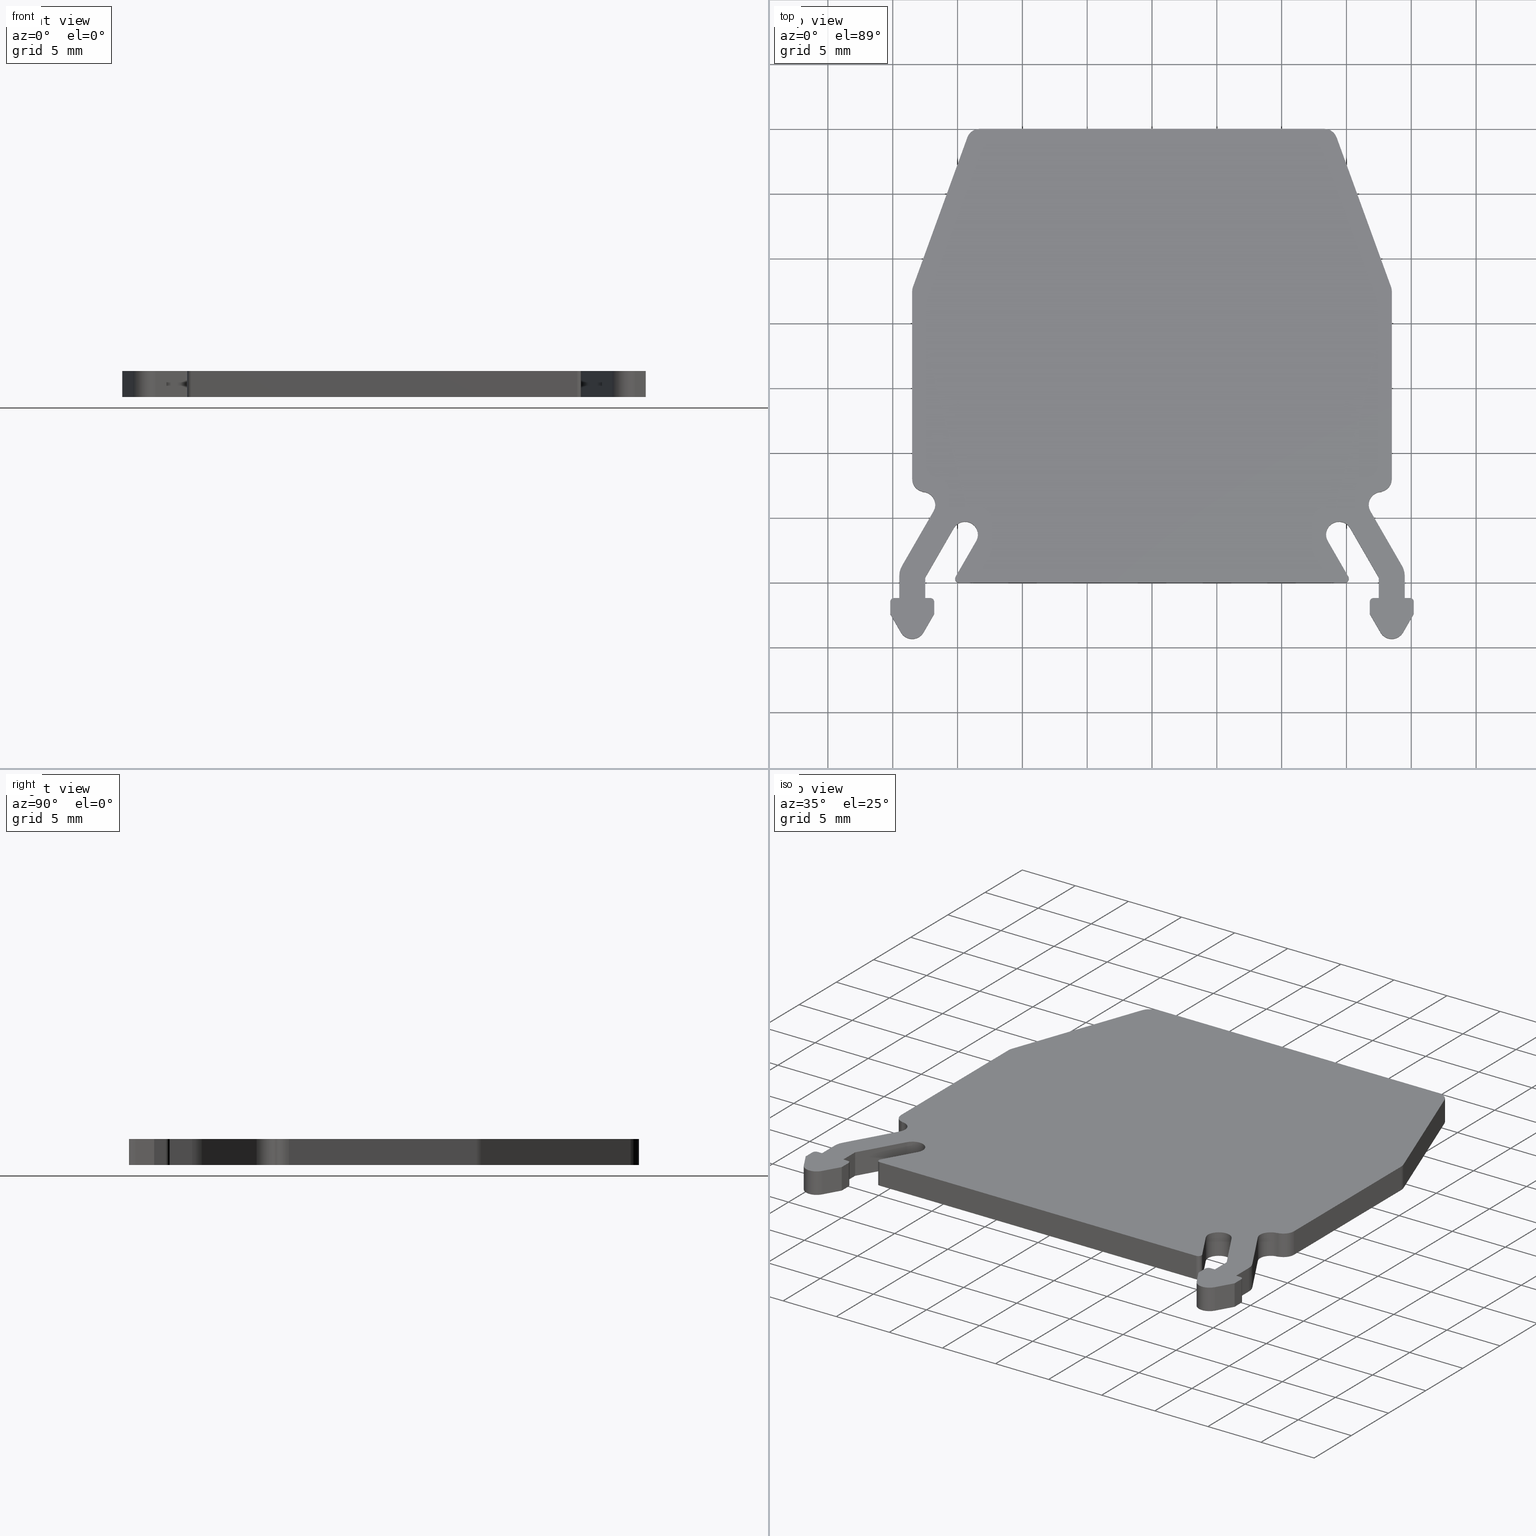
[diagram: canonical four-view strip — front | top / right | iso, engineering-drawing reading convention]
A machine part, canonical four-view strip (front | top / right | iso — engineering-drawing reading convention). The complete STEP part file that produces these views, byte-faithful:
ISO-10303-21;
HEADER;
/* Generated by software containing ST-Developer
 * from STEP Tools, Inc. (www.steptools.com) 
 */

FILE_DESCRIPTION(
/* description */ ('Abschlusswand GRAU',
'CAx-IF Rec.Pracs.---Representation and Presentation of Product Manufa
cturing Information (PMI)---3.8---2014-02-18'),
/* implementation_level */ '2;1');

FILE_NAME(
/* name */ 'F:\\DATENTRANSFER\\sutter\\STEP_files\\Abschlusswand GRAU.
stp',
/* time_stamp */ '2018-04-25T14:36:39+02:00',
/* author */ ('tec-sl'),
/* organization */ (''),
/* preprocessor_version */ 'ST-DEVELOPER v16.1',
/* originating_system */ 'Autodesk Inventor 2016',
/* authorisation */ '');

FILE_SCHEMA (('AP242_MANAGED_MODEL_BASED_3D_ENGINEERING_MIM_LF { 1 0 10303 442 1 1 4 }'));
ENDSEC;

DATA;
#10=MECHANICAL_DESIGN_GEOMETRIC_PRESENTATION_REPRESENTATION('',(#13),#1729);
#11=SHAPE_REPRESENTATION_RELATIONSHIP('SRR','None',#1738,#12);
#12=ADVANCED_BREP_SHAPE_REPRESENTATION('',(#14),#1728);
#13=STYLED_ITEM('',(#1747),#14);
#14=MANIFOLD_SOLID_BREP('Volumenk\X\F6rper1',#1033);
#15=PLANE('',#1038);
#16=PLANE('',#1042);
#17=PLANE('',#1046);
#18=PLANE('',#1050);
#19=PLANE('',#1054);
#20=PLANE('',#1055);
#21=PLANE('',#1059);
#22=PLANE('',#1060);
#23=PLANE('',#1064);
#24=PLANE('',#1065);
#25=PLANE('',#1069);
#26=PLANE('',#1070);
#27=PLANE('',#1071);
#28=PLANE('',#1075);
#29=PLANE('',#1079);
#30=PLANE('',#1090);
#31=PLANE('',#1093);
#32=PLANE('',#1096);
#33=PLANE('',#1097);
#34=PLANE('',#1098);
#35=PLANE('',#1101);
#36=PLANE('',#1102);
#37=PLANE('',#1105);
#38=PLANE('',#1106);
#39=PLANE('',#1109);
#40=PLANE('',#1110);
#41=PLANE('',#1113);
#42=PLANE('',#1116);
#43=PLANE('',#1119);
#44=PLANE('',#1122);
#45=PLANE('',#1125);
#46=PLANE('',#1126);
#47=FACE_OUTER_BOUND('',#99,.T.);
#48=FACE_OUTER_BOUND('',#100,.T.);
#49=FACE_OUTER_BOUND('',#101,.T.);
#50=FACE_OUTER_BOUND('',#102,.T.);
#51=FACE_OUTER_BOUND('',#103,.T.);
#52=FACE_OUTER_BOUND('',#104,.T.);
#53=FACE_OUTER_BOUND('',#105,.T.);
#54=FACE_OUTER_BOUND('',#106,.T.);
#55=FACE_OUTER_BOUND('',#107,.T.);
#56=FACE_OUTER_BOUND('',#108,.T.);
#57=FACE_OUTER_BOUND('',#109,.T.);
#58=FACE_OUTER_BOUND('',#110,.T.);
#59=FACE_OUTER_BOUND('',#111,.T.);
#60=FACE_OUTER_BOUND('',#112,.T.);
#61=FACE_OUTER_BOUND('',#113,.T.);
#62=FACE_OUTER_BOUND('',#114,.T.);
#63=FACE_OUTER_BOUND('',#115,.T.);
#64=FACE_OUTER_BOUND('',#116,.T.);
#65=FACE_OUTER_BOUND('',#117,.T.);
#66=FACE_OUTER_BOUND('',#118,.T.);
#67=FACE_OUTER_BOUND('',#119,.T.);
#68=FACE_OUTER_BOUND('',#120,.T.);
#69=FACE_OUTER_BOUND('',#121,.T.);
#70=FACE_OUTER_BOUND('',#122,.T.);
#71=FACE_OUTER_BOUND('',#123,.T.);
#72=FACE_OUTER_BOUND('',#124,.T.);
#73=FACE_OUTER_BOUND('',#125,.T.);
#74=FACE_OUTER_BOUND('',#126,.T.);
#75=FACE_OUTER_BOUND('',#127,.T.);
#76=FACE_OUTER_BOUND('',#128,.T.);
#77=FACE_OUTER_BOUND('',#129,.T.);
#78=FACE_OUTER_BOUND('',#130,.T.);
#79=FACE_OUTER_BOUND('',#131,.T.);
#80=FACE_OUTER_BOUND('',#132,.T.);
#81=FACE_OUTER_BOUND('',#133,.T.);
#82=FACE_OUTER_BOUND('',#134,.T.);
#83=FACE_OUTER_BOUND('',#135,.T.);
#84=FACE_OUTER_BOUND('',#136,.T.);
#85=FACE_OUTER_BOUND('',#137,.T.);
#86=FACE_OUTER_BOUND('',#138,.T.);
#87=FACE_OUTER_BOUND('',#139,.T.);
#88=FACE_OUTER_BOUND('',#140,.T.);
#89=FACE_OUTER_BOUND('',#141,.T.);
#90=FACE_OUTER_BOUND('',#142,.T.);
#91=FACE_OUTER_BOUND('',#143,.T.);
#92=FACE_OUTER_BOUND('',#144,.T.);
#93=FACE_OUTER_BOUND('',#145,.T.);
#94=FACE_OUTER_BOUND('',#146,.T.);
#95=FACE_OUTER_BOUND('',#147,.T.);
#96=FACE_OUTER_BOUND('',#148,.T.);
#97=FACE_OUTER_BOUND('',#149,.T.);
#98=FACE_OUTER_BOUND('',#150,.T.);
#99=EDGE_LOOP('',(#661,#662,#663,#664));
#100=EDGE_LOOP('',(#665,#666,#667,#668));
#101=EDGE_LOOP('',(#669,#670,#671,#672));
#102=EDGE_LOOP('',(#673,#674,#675,#676));
#103=EDGE_LOOP('',(#677,#678,#679,#680));
#104=EDGE_LOOP('',(#681,#682,#683,#684));
#105=EDGE_LOOP('',(#685,#686,#687,#688));
#106=EDGE_LOOP('',(#689,#690,#691,#692));
#107=EDGE_LOOP('',(#693,#694,#695,#696));
#108=EDGE_LOOP('',(#697,#698,#699,#700));
#109=EDGE_LOOP('',(#701,#702,#703,#704));
#110=EDGE_LOOP('',(#705,#706,#707,#708));
#111=EDGE_LOOP('',(#709,#710,#711,#712));
#112=EDGE_LOOP('',(#713,#714,#715,#716));
#113=EDGE_LOOP('',(#717,#718,#719,#720));
#114=EDGE_LOOP('',(#721,#722,#723,#724));
#115=EDGE_LOOP('',(#725,#726,#727,#728));
#116=EDGE_LOOP('',(#729,#730,#731,#732));
#117=EDGE_LOOP('',(#733,#734,#735,#736));
#118=EDGE_LOOP('',(#737,#738,#739,#740));
#119=EDGE_LOOP('',(#741,#742,#743,#744));
#120=EDGE_LOOP('',(#745,#746,#747,#748));
#121=EDGE_LOOP('',(#749,#750,#751,#752));
#122=EDGE_LOOP('',(#753,#754,#755,#756));
#123=EDGE_LOOP('',(#757,#758,#759,#760,#761,#762,#763,#764,#765,#766,#767,
#768,#769,#770,#771,#772,#773,#774,#775,#776,#777,#778,#779,#780,#781,#782,
#783,#784,#785,#786,#787,#788,#789,#790,#791,#792,#793,#794,#795,#796,#797,
#798,#799,#800,#801,#802,#803,#804,#805,#806));
#124=EDGE_LOOP('',(#807,#808,#809,#810));
#125=EDGE_LOOP('',(#811,#812,#813,#814));
#126=EDGE_LOOP('',(#815,#816,#817,#818));
#127=EDGE_LOOP('',(#819,#820,#821,#822));
#128=EDGE_LOOP('',(#823,#824,#825,#826));
#129=EDGE_LOOP('',(#827,#828,#829,#830));
#130=EDGE_LOOP('',(#831,#832,#833,#834));
#131=EDGE_LOOP('',(#835,#836,#837,#838));
#132=EDGE_LOOP('',(#839,#840,#841,#842));
#133=EDGE_LOOP('',(#843,#844,#845,#846));
#134=EDGE_LOOP('',(#847,#848,#849,#850));
#135=EDGE_LOOP('',(#851,#852,#853,#854));
#136=EDGE_LOOP('',(#855,#856,#857,#858));
#137=EDGE_LOOP('',(#859,#860,#861,#862));
#138=EDGE_LOOP('',(#863,#864,#865,#866));
#139=EDGE_LOOP('',(#867,#868,#869,#870));
#140=EDGE_LOOP('',(#871,#872,#873,#874));
#141=EDGE_LOOP('',(#875,#876,#877,#878));
#142=EDGE_LOOP('',(#879,#880,#881,#882));
#143=EDGE_LOOP('',(#883,#884,#885,#886));
#144=EDGE_LOOP('',(#887,#888,#889,#890));
#145=EDGE_LOOP('',(#891,#892,#893,#894));
#146=EDGE_LOOP('',(#895,#896,#897,#898));
#147=EDGE_LOOP('',(#899,#900,#901,#902));
#148=EDGE_LOOP('',(#903,#904,#905,#906));
#149=EDGE_LOOP('',(#907,#908,#909,#910));
#150=EDGE_LOOP('',(#911,#912,#913,#914,#915,#916,#917,#918,#919,#920,#921,
#922,#923,#924,#925,#926,#927,#928,#929,#930,#931,#932,#933,#934,#935,#936,
#937,#938,#939,#940,#941,#942,#943,#944,#945,#946,#947,#948,#949,#950,#951,
#952,#953,#954,#955,#956,#957,#958,#959,#960));
#151=LINE('',#1429,#261);
#152=LINE('',#1432,#262);
#153=LINE('',#1435,#263);
#154=LINE('',#1437,#264);
#155=LINE('',#1438,#265);
#156=LINE('',#1443,#266);
#157=LINE('',#1447,#267);
#158=LINE('',#1449,#268);
#159=LINE('',#1450,#269);
#160=LINE('',#1455,#270);
#161=LINE('',#1459,#271);
#162=LINE('',#1461,#272);
#163=LINE('',#1462,#273);
#164=LINE('',#1467,#274);
#165=LINE('',#1471,#275);
#166=LINE('',#1473,#276);
#167=LINE('',#1474,#277);
#168=LINE('',#1479,#278);
#169=LINE('',#1483,#279);
#170=LINE('',#1485,#280);
#171=LINE('',#1486,#281);
#172=LINE('',#1489,#282);
#173=LINE('',#1491,#283);
#174=LINE('',#1492,#284);
#175=LINE('',#1497,#285);
#176=LINE('',#1501,#286);
#177=LINE('',#1503,#287);
#178=LINE('',#1504,#288);
#179=LINE('',#1507,#289);
#180=LINE('',#1509,#290);
#181=LINE('',#1510,#291);
#182=LINE('',#1515,#292);
#183=LINE('',#1519,#293);
#184=LINE('',#1521,#294);
#185=LINE('',#1522,#295);
#186=LINE('',#1525,#296);
#187=LINE('',#1527,#297);
#188=LINE('',#1528,#298);
#189=LINE('',#1533,#299);
#190=LINE('',#1537,#300);
#191=LINE('',#1539,#301);
#192=LINE('',#1540,#302);
#193=LINE('',#1543,#303);
#194=LINE('',#1545,#304);
#195=LINE('',#1546,#305);
#196=LINE('',#1549,#306);
#197=LINE('',#1551,#307);
#198=LINE('',#1552,#308);
#199=LINE('',#1557,#309);
#200=LINE('',#1561,#310);
#201=LINE('',#1563,#311);
#202=LINE('',#1564,#312);
#203=LINE('',#1569,#313);
#204=LINE('',#1575,#314);
#205=LINE('',#1577,#315);
#206=LINE('',#1581,#316);
#207=LINE('',#1585,#317);
#208=LINE('',#1587,#318);
#209=LINE('',#1589,#319);
#210=LINE('',#1593,#320);
#211=LINE('',#1595,#321);
#212=LINE('',#1599,#322);
#213=LINE('',#1601,#323);
#214=LINE('',#1605,#324);
#215=LINE('',#1607,#325);
#216=LINE('',#1611,#326);
#217=LINE('',#1615,#327);
#218=LINE('',#1619,#328);
#219=LINE('',#1622,#329);
#220=LINE('',#1625,#330);
#221=LINE('',#1626,#331);
#222=LINE('',#1630,#332);
#223=LINE('',#1633,#333);
#224=LINE('',#1634,#334);
#225=LINE('',#1638,#335);
#226=LINE('',#1641,#336);
#227=LINE('',#1642,#337);
#228=LINE('',#1645,#338);
#229=LINE('',#1646,#339);
#230=LINE('',#1649,#340);
#231=LINE('',#1650,#341);
#232=LINE('',#1654,#342);
#233=LINE('',#1657,#343);
#234=LINE('',#1658,#344);
#235=LINE('',#1661,#345);
#236=LINE('',#1662,#346);
#237=LINE('',#1666,#347);
#238=LINE('',#1669,#348);
#239=LINE('',#1670,#349);
#240=LINE('',#1673,#350);
#241=LINE('',#1674,#351);
#242=LINE('',#1678,#352);
#243=LINE('',#1681,#353);
#244=LINE('',#1682,#354);
#245=LINE('',#1685,#355);
#246=LINE('',#1686,#356);
#247=LINE('',#1690,#357);
#248=LINE('',#1693,#358);
#249=LINE('',#1694,#359);
#250=LINE('',#1698,#360);
#251=LINE('',#1701,#361);
#252=LINE('',#1702,#362);
#253=LINE('',#1706,#363);
#254=LINE('',#1709,#364);
#255=LINE('',#1710,#365);
#256=LINE('',#1714,#366);
#257=LINE('',#1717,#367);
#258=LINE('',#1718,#368);
#259=LINE('',#1722,#369);
#260=LINE('',#1724,#370);
#261=VECTOR('',#1133,2.);
#262=VECTOR('',#1136,2.);
#263=VECTOR('',#1139,12.2805852818158);
#264=VECTOR('',#1140,2.);
#265=VECTOR('',#1141,12.2805852818158);
#266=VECTOR('',#1146,2.);
#267=VECTOR('',#1151,14.4600246317457);
#268=VECTOR('',#1152,2.);
#269=VECTOR('',#1153,14.4600246317457);
#270=VECTOR('',#1158,2.);
#271=VECTOR('',#1163,0.21557713659401);
#272=VECTOR('',#1164,2.);
#273=VECTOR('',#1165,0.21557713659401);
#274=VECTOR('',#1170,2.);
#275=VECTOR('',#1175,4.88897274573418);
#276=VECTOR('',#1176,2.);
#277=VECTOR('',#1177,4.88897274573418);
#278=VECTOR('',#1182,2.);
#279=VECTOR('',#1187,1.71602540378444);
#280=VECTOR('',#1188,2.);
#281=VECTOR('',#1189,1.71602540378444);
#282=VECTOR('',#1192,0.400000000000003);
#283=VECTOR('',#1193,2.);
#284=VECTOR('',#1194,0.400000000000003);
#285=VECTOR('',#1199,2.);
#286=VECTOR('',#1204,0.905513627132916);
#287=VECTOR('',#1205,2.);
#288=VECTOR('',#1206,0.905513627132916);
#289=VECTOR('',#1209,1.66794919243111);
#290=VECTOR('',#1210,2.);
#291=VECTOR('',#1211,1.66794919243111);
#292=VECTOR('',#1216,2.);
#293=VECTOR('',#1221,1.66794919243111);
#294=VECTOR('',#1222,2.);
#295=VECTOR('',#1223,1.66794919243111);
#296=VECTOR('',#1226,0.905513627132916);
#297=VECTOR('',#1227,2.);
#298=VECTOR('',#1228,0.905513627132916);
#299=VECTOR('',#1233,2.);
#300=VECTOR('',#1238,0.400000000000003);
#301=VECTOR('',#1239,2.);
#302=VECTOR('',#1240,0.400000000000003);
#303=VECTOR('',#1243,1.58205080756888);
#304=VECTOR('',#1244,2.);
#305=VECTOR('',#1245,1.58205080756888);
#306=VECTOR('',#1248,4.40858798800484);
#307=VECTOR('',#1249,2.);
#308=VECTOR('',#1250,4.40858798800484);
#309=VECTOR('',#1255,2.);
#310=VECTOR('',#1260,3.17542648054294);
#311=VECTOR('',#1261,2.);
#312=VECTOR('',#1262,3.17542648054294);
#313=VECTOR('',#1267,2.);
#314=VECTOR('',#1274,26.5995849235806);
#315=VECTOR('',#1275,29.7731216351297);
#316=VECTOR('',#1278,3.17542648054294);
#317=VECTOR('',#1281,4.40858798800484);
#318=VECTOR('',#1282,1.58205080756888);
#319=VECTOR('',#1283,0.400000000000003);
#320=VECTOR('',#1286,0.905513627132916);
#321=VECTOR('',#1287,1.66794919243111);
#322=VECTOR('',#1290,1.66794919243111);
#323=VECTOR('',#1291,0.905513627132916);
#324=VECTOR('',#1294,0.400000000000003);
#325=VECTOR('',#1295,1.71602540378444);
#326=VECTOR('',#1298,4.88897274573418);
#327=VECTOR('',#1301,0.21557713659401);
#328=VECTOR('',#1304,14.4600246317457);
#329=VECTOR('',#1307,12.2805852818158);
#330=VECTOR('',#1310,29.7731216351297);
#331=VECTOR('',#1311,2.);
#332=VECTOR('',#1316,2.);
#333=VECTOR('',#1319,3.17542648054294);
#334=VECTOR('',#1320,2.);
#335=VECTOR('',#1325,2.);
#336=VECTOR('',#1328,4.40858798800484);
#337=VECTOR('',#1329,2.);
#338=VECTOR('',#1332,1.58205080756888);
#339=VECTOR('',#1333,2.);
#340=VECTOR('',#1336,0.400000000000003);
#341=VECTOR('',#1337,2.);
#342=VECTOR('',#1342,2.);
#343=VECTOR('',#1345,0.905513627132916);
#344=VECTOR('',#1346,2.);
#345=VECTOR('',#1349,1.66794919243111);
#346=VECTOR('',#1350,2.);
#347=VECTOR('',#1355,2.);
#348=VECTOR('',#1358,1.66794919243111);
#349=VECTOR('',#1359,2.);
#350=VECTOR('',#1362,0.905513627132916);
#351=VECTOR('',#1363,2.);
#352=VECTOR('',#1368,2.);
#353=VECTOR('',#1371,0.400000000000003);
#354=VECTOR('',#1372,2.);
#355=VECTOR('',#1375,1.71602540378444);
#356=VECTOR('',#1376,2.);
#357=VECTOR('',#1381,2.);
#358=VECTOR('',#1384,4.88897274573418);
#359=VECTOR('',#1385,2.);
#360=VECTOR('',#1390,2.);
#361=VECTOR('',#1393,0.21557713659401);
#362=VECTOR('',#1394,2.);
#363=VECTOR('',#1399,2.);
#364=VECTOR('',#1402,14.4600246317457);
#365=VECTOR('',#1403,2.);
#366=VECTOR('',#1408,2.);
#367=VECTOR('',#1411,12.2805852818158);
#368=VECTOR('',#1412,2.);
#369=VECTOR('',#1417,2.);
#370=VECTOR('',#1420,26.5995849235806);
#371=CIRCLE('',#1036,1.);
#372=CIRCLE('',#1037,1.);
#373=CIRCLE('',#1040,1.);
#374=CIRCLE('',#1041,1.);
#375=CIRCLE('',#1044,1.);
#376=CIRCLE('',#1045,1.);
#377=CIRCLE('',#1048,1.);
#378=CIRCLE('',#1049,1.);
#379=CIRCLE('',#1052,1.50000000000002);
#380=CIRCLE('',#1053,1.50000000000002);
#381=CIRCLE('',#1057,0.299999999999999);
#382=CIRCLE('',#1058,0.299999999999999);
#383=CIRCLE('',#1062,0.999999999999998);
#384=CIRCLE('',#1063,0.999999999999998);
#385=CIRCLE('',#1067,0.3);
#386=CIRCLE('',#1068,0.3);
#387=CIRCLE('',#1073,1.);
#388=CIRCLE('',#1074,1.);
#389=CIRCLE('',#1077,0.300000000000002);
#390=CIRCLE('',#1078,0.300000000000002);
#391=CIRCLE('',#1080,1.);
#392=CIRCLE('',#1081,0.300000000000002);
#393=CIRCLE('',#1082,1.);
#394=CIRCLE('',#1083,0.3);
#395=CIRCLE('',#1084,0.999999999999999);
#396=CIRCLE('',#1085,0.299999999999999);
#397=CIRCLE('',#1086,1.50000000000002);
#398=CIRCLE('',#1087,1.);
#399=CIRCLE('',#1088,1.);
#400=CIRCLE('',#1089,1.);
#401=CIRCLE('',#1092,0.300000000000002);
#402=CIRCLE('',#1095,1.);
#403=CIRCLE('',#1100,0.3);
#404=CIRCLE('',#1104,0.999999999999999);
#405=CIRCLE('',#1108,0.299999999999999);
#406=CIRCLE('',#1112,1.50000000000002);
#407=CIRCLE('',#1115,1.);
#408=CIRCLE('',#1118,1.);
#409=CIRCLE('',#1121,1.);
#410=CIRCLE('',#1124,1.);
#411=VERTEX_POINT('',#1425);
#412=VERTEX_POINT('',#1426);
#413=VERTEX_POINT('',#1428);
#414=VERTEX_POINT('',#1430);
#415=VERTEX_POINT('',#1434);
#416=VERTEX_POINT('',#1436);
#417=VERTEX_POINT('',#1440);
#418=VERTEX_POINT('',#1442);
#419=VERTEX_POINT('',#1446);
#420=VERTEX_POINT('',#1448);
#421=VERTEX_POINT('',#1452);
#422=VERTEX_POINT('',#1454);
#423=VERTEX_POINT('',#1458);
#424=VERTEX_POINT('',#1460);
#425=VERTEX_POINT('',#1464);
#426=VERTEX_POINT('',#1466);
#427=VERTEX_POINT('',#1470);
#428=VERTEX_POINT('',#1472);
#429=VERTEX_POINT('',#1476);
#430=VERTEX_POINT('',#1478);
#431=VERTEX_POINT('',#1482);
#432=VERTEX_POINT('',#1484);
#433=VERTEX_POINT('',#1488);
#434=VERTEX_POINT('',#1490);
#435=VERTEX_POINT('',#1494);
#436=VERTEX_POINT('',#1496);
#437=VERTEX_POINT('',#1500);
#438=VERTEX_POINT('',#1502);
#439=VERTEX_POINT('',#1506);
#440=VERTEX_POINT('',#1508);
#441=VERTEX_POINT('',#1512);
#442=VERTEX_POINT('',#1514);
#443=VERTEX_POINT('',#1518);
#444=VERTEX_POINT('',#1520);
#445=VERTEX_POINT('',#1524);
#446=VERTEX_POINT('',#1526);
#447=VERTEX_POINT('',#1530);
#448=VERTEX_POINT('',#1532);
#449=VERTEX_POINT('',#1536);
#450=VERTEX_POINT('',#1538);
#451=VERTEX_POINT('',#1542);
#452=VERTEX_POINT('',#1544);
#453=VERTEX_POINT('',#1548);
#454=VERTEX_POINT('',#1550);
#455=VERTEX_POINT('',#1554);
#456=VERTEX_POINT('',#1556);
#457=VERTEX_POINT('',#1560);
#458=VERTEX_POINT('',#1562);
#459=VERTEX_POINT('',#1566);
#460=VERTEX_POINT('',#1568);
#461=VERTEX_POINT('',#1572);
#462=VERTEX_POINT('',#1573);
#463=VERTEX_POINT('',#1576);
#464=VERTEX_POINT('',#1578);
#465=VERTEX_POINT('',#1580);
#466=VERTEX_POINT('',#1582);
#467=VERTEX_POINT('',#1584);
#468=VERTEX_POINT('',#1586);
#469=VERTEX_POINT('',#1588);
#470=VERTEX_POINT('',#1590);
#471=VERTEX_POINT('',#1592);
#472=VERTEX_POINT('',#1594);
#473=VERTEX_POINT('',#1596);
#474=VERTEX_POINT('',#1598);
#475=VERTEX_POINT('',#1600);
#476=VERTEX_POINT('',#1602);
#477=VERTEX_POINT('',#1604);
#478=VERTEX_POINT('',#1606);
#479=VERTEX_POINT('',#1608);
#480=VERTEX_POINT('',#1610);
#481=VERTEX_POINT('',#1612);
#482=VERTEX_POINT('',#1614);
#483=VERTEX_POINT('',#1616);
#484=VERTEX_POINT('',#1618);
#485=VERTEX_POINT('',#1620);
#486=VERTEX_POINT('',#1624);
#487=VERTEX_POINT('',#1628);
#488=VERTEX_POINT('',#1632);
#489=VERTEX_POINT('',#1636);
#490=VERTEX_POINT('',#1640);
#491=VERTEX_POINT('',#1644);
#492=VERTEX_POINT('',#1648);
#493=VERTEX_POINT('',#1652);
#494=VERTEX_POINT('',#1656);
#495=VERTEX_POINT('',#1660);
#496=VERTEX_POINT('',#1664);
#497=VERTEX_POINT('',#1668);
#498=VERTEX_POINT('',#1672);
#499=VERTEX_POINT('',#1676);
#500=VERTEX_POINT('',#1680);
#501=VERTEX_POINT('',#1684);
#502=VERTEX_POINT('',#1688);
#503=VERTEX_POINT('',#1692);
#504=VERTEX_POINT('',#1696);
#505=VERTEX_POINT('',#1700);
#506=VERTEX_POINT('',#1704);
#507=VERTEX_POINT('',#1708);
#508=VERTEX_POINT('',#1712);
#509=VERTEX_POINT('',#1716);
#510=VERTEX_POINT('',#1720);
#511=EDGE_CURVE('',#411,#412,#371,.T.);
#512=EDGE_CURVE('',#413,#412,#151,.T.);
#513=EDGE_CURVE('',#413,#414,#372,.T.);
#514=EDGE_CURVE('',#414,#411,#152,.T.);
#515=EDGE_CURVE('',#412,#415,#153,.T.);
#516=EDGE_CURVE('',#416,#415,#154,.T.);
#517=EDGE_CURVE('',#416,#413,#155,.T.);
#518=EDGE_CURVE('',#415,#417,#373,.T.);
#519=EDGE_CURVE('',#418,#417,#156,.T.);
#520=EDGE_CURVE('',#418,#416,#374,.T.);
#521=EDGE_CURVE('',#417,#419,#157,.T.);
#522=EDGE_CURVE('',#420,#419,#158,.T.);
#523=EDGE_CURVE('',#420,#418,#159,.T.);
#524=EDGE_CURVE('',#419,#421,#375,.T.);
#525=EDGE_CURVE('',#422,#421,#160,.T.);
#526=EDGE_CURVE('',#422,#420,#376,.T.);
#527=EDGE_CURVE('',#421,#423,#161,.T.);
#528=EDGE_CURVE('',#424,#423,#162,.T.);
#529=EDGE_CURVE('',#424,#422,#163,.T.);
#530=EDGE_CURVE('',#423,#425,#377,.T.);
#531=EDGE_CURVE('',#426,#425,#164,.T.);
#532=EDGE_CURVE('',#426,#424,#378,.T.);
#533=EDGE_CURVE('',#425,#427,#165,.T.);
#534=EDGE_CURVE('',#428,#427,#166,.T.);
#535=EDGE_CURVE('',#428,#426,#167,.T.);
#536=EDGE_CURVE('',#427,#429,#379,.T.);
#537=EDGE_CURVE('',#430,#429,#168,.T.);
#538=EDGE_CURVE('',#430,#428,#380,.T.);
#539=EDGE_CURVE('',#429,#431,#169,.T.);
#540=EDGE_CURVE('',#432,#431,#170,.T.);
#541=EDGE_CURVE('',#432,#430,#171,.T.);
#542=EDGE_CURVE('',#431,#433,#172,.T.);
#543=EDGE_CURVE('',#434,#433,#173,.T.);
#544=EDGE_CURVE('',#434,#432,#174,.T.);
#545=EDGE_CURVE('',#433,#435,#381,.T.);
#546=EDGE_CURVE('',#436,#435,#175,.T.);
#547=EDGE_CURVE('',#436,#434,#382,.T.);
#548=EDGE_CURVE('',#435,#437,#176,.T.);
#549=EDGE_CURVE('',#438,#437,#177,.T.);
#550=EDGE_CURVE('',#438,#436,#178,.T.);
#551=EDGE_CURVE('',#437,#439,#179,.T.);
#552=EDGE_CURVE('',#440,#439,#180,.T.);
#553=EDGE_CURVE('',#440,#438,#181,.T.);
#554=EDGE_CURVE('',#439,#441,#383,.T.);
#555=EDGE_CURVE('',#442,#441,#182,.T.);
#556=EDGE_CURVE('',#442,#440,#384,.T.);
#557=EDGE_CURVE('',#441,#443,#183,.T.);
#558=EDGE_CURVE('',#444,#443,#184,.T.);
#559=EDGE_CURVE('',#444,#442,#185,.T.);
#560=EDGE_CURVE('',#443,#445,#186,.T.);
#561=EDGE_CURVE('',#446,#445,#187,.T.);
#562=EDGE_CURVE('',#446,#444,#188,.T.);
#563=EDGE_CURVE('',#445,#447,#385,.T.);
#564=EDGE_CURVE('',#448,#447,#189,.T.);
#565=EDGE_CURVE('',#448,#446,#386,.T.);
#566=EDGE_CURVE('',#447,#449,#190,.T.);
#567=EDGE_CURVE('',#450,#449,#191,.T.);
#568=EDGE_CURVE('',#450,#448,#192,.T.);
#569=EDGE_CURVE('',#449,#451,#193,.T.);
#570=EDGE_CURVE('',#452,#451,#194,.T.);
#571=EDGE_CURVE('',#452,#450,#195,.T.);
#572=EDGE_CURVE('',#451,#453,#196,.T.);
#573=EDGE_CURVE('',#454,#453,#197,.T.);
#574=EDGE_CURVE('',#454,#452,#198,.T.);
#575=EDGE_CURVE('',#453,#455,#387,.T.);
#576=EDGE_CURVE('',#456,#455,#199,.T.);
#577=EDGE_CURVE('',#456,#454,#388,.T.);
#578=EDGE_CURVE('',#455,#457,#200,.T.);
#579=EDGE_CURVE('',#458,#457,#201,.T.);
#580=EDGE_CURVE('',#458,#456,#202,.T.);
#581=EDGE_CURVE('',#457,#459,#389,.T.);
#582=EDGE_CURVE('',#460,#459,#203,.T.);
#583=EDGE_CURVE('',#460,#458,#390,.T.);
#584=EDGE_CURVE('',#461,#462,#391,.T.);
#585=EDGE_CURVE('',#414,#461,#204,.T.);
#586=EDGE_CURVE('',#463,#460,#205,.T.);
#587=EDGE_CURVE('',#464,#463,#392,.T.);
#588=EDGE_CURVE('',#465,#464,#206,.T.);
#589=EDGE_CURVE('',#466,#465,#393,.T.);
#590=EDGE_CURVE('',#467,#466,#207,.T.);
#591=EDGE_CURVE('',#468,#467,#208,.T.);
#592=EDGE_CURVE('',#469,#468,#209,.T.);
#593=EDGE_CURVE('',#470,#469,#394,.T.);
#594=EDGE_CURVE('',#471,#470,#210,.T.);
#595=EDGE_CURVE('',#472,#471,#211,.T.);
#596=EDGE_CURVE('',#473,#472,#395,.T.);
#597=EDGE_CURVE('',#474,#473,#212,.T.);
#598=EDGE_CURVE('',#475,#474,#213,.T.);
#599=EDGE_CURVE('',#476,#475,#396,.T.);
#600=EDGE_CURVE('',#477,#476,#214,.T.);
#601=EDGE_CURVE('',#478,#477,#215,.T.);
#602=EDGE_CURVE('',#479,#478,#397,.T.);
#603=EDGE_CURVE('',#480,#479,#216,.T.);
#604=EDGE_CURVE('',#481,#480,#398,.T.);
#605=EDGE_CURVE('',#482,#481,#217,.T.);
#606=EDGE_CURVE('',#483,#482,#399,.T.);
#607=EDGE_CURVE('',#484,#483,#218,.T.);
#608=EDGE_CURVE('',#485,#484,#400,.T.);
#609=EDGE_CURVE('',#462,#485,#219,.T.);
#610=EDGE_CURVE('',#459,#486,#220,.T.);
#611=EDGE_CURVE('',#463,#486,#221,.T.);
#612=EDGE_CURVE('',#486,#487,#401,.T.);
#613=EDGE_CURVE('',#464,#487,#222,.T.);
#614=EDGE_CURVE('',#487,#488,#223,.T.);
#615=EDGE_CURVE('',#465,#488,#224,.T.);
#616=EDGE_CURVE('',#488,#489,#402,.T.);
#617=EDGE_CURVE('',#466,#489,#225,.T.);
#618=EDGE_CURVE('',#489,#490,#226,.T.);
#619=EDGE_CURVE('',#467,#490,#227,.T.);
#620=EDGE_CURVE('',#490,#491,#228,.T.);
#621=EDGE_CURVE('',#468,#491,#229,.T.);
#622=EDGE_CURVE('',#491,#492,#230,.T.);
#623=EDGE_CURVE('',#469,#492,#231,.T.);
#624=EDGE_CURVE('',#492,#493,#403,.T.);
#625=EDGE_CURVE('',#470,#493,#232,.T.);
#626=EDGE_CURVE('',#493,#494,#233,.T.);
#627=EDGE_CURVE('',#471,#494,#234,.T.);
#628=EDGE_CURVE('',#494,#495,#235,.T.);
#629=EDGE_CURVE('',#472,#495,#236,.T.);
#630=EDGE_CURVE('',#495,#496,#404,.T.);
#631=EDGE_CURVE('',#473,#496,#237,.T.);
#632=EDGE_CURVE('',#496,#497,#238,.T.);
#633=EDGE_CURVE('',#474,#497,#239,.T.);
#634=EDGE_CURVE('',#497,#498,#240,.T.);
#635=EDGE_CURVE('',#475,#498,#241,.T.);
#636=EDGE_CURVE('',#498,#499,#405,.T.);
#637=EDGE_CURVE('',#476,#499,#242,.T.);
#638=EDGE_CURVE('',#499,#500,#243,.T.);
#639=EDGE_CURVE('',#477,#500,#244,.T.);
#640=EDGE_CURVE('',#500,#501,#245,.T.);
#641=EDGE_CURVE('',#478,#501,#246,.T.);
#642=EDGE_CURVE('',#501,#502,#406,.T.);
#643=EDGE_CURVE('',#479,#502,#247,.T.);
#644=EDGE_CURVE('',#502,#503,#248,.T.);
#645=EDGE_CURVE('',#480,#503,#249,.T.);
#646=EDGE_CURVE('',#503,#504,#407,.T.);
#647=EDGE_CURVE('',#481,#504,#250,.T.);
#648=EDGE_CURVE('',#504,#505,#251,.T.);
#649=EDGE_CURVE('',#482,#505,#252,.T.);
#650=EDGE_CURVE('',#505,#506,#408,.T.);
#651=EDGE_CURVE('',#483,#506,#253,.T.);
#652=EDGE_CURVE('',#506,#507,#254,.T.);
#653=EDGE_CURVE('',#484,#507,#255,.T.);
#654=EDGE_CURVE('',#507,#508,#409,.T.);
#655=EDGE_CURVE('',#485,#508,#256,.T.);
#656=EDGE_CURVE('',#508,#509,#257,.T.);
#657=EDGE_CURVE('',#462,#509,#258,.T.);
#658=EDGE_CURVE('',#509,#510,#410,.T.);
#659=EDGE_CURVE('',#461,#510,#259,.T.);
#660=EDGE_CURVE('',#510,#411,#260,.T.);
#661=ORIENTED_EDGE('',*,*,#511,.T.);
#662=ORIENTED_EDGE('',*,*,#512,.F.);
#663=ORIENTED_EDGE('',*,*,#513,.T.);
#664=ORIENTED_EDGE('',*,*,#514,.T.);
#665=ORIENTED_EDGE('',*,*,#515,.T.);
#666=ORIENTED_EDGE('',*,*,#516,.F.);
#667=ORIENTED_EDGE('',*,*,#517,.T.);
#668=ORIENTED_EDGE('',*,*,#512,.T.);
#669=ORIENTED_EDGE('',*,*,#518,.T.);
#670=ORIENTED_EDGE('',*,*,#519,.F.);
#671=ORIENTED_EDGE('',*,*,#520,.T.);
#672=ORIENTED_EDGE('',*,*,#516,.T.);
#673=ORIENTED_EDGE('',*,*,#521,.T.);
#674=ORIENTED_EDGE('',*,*,#522,.F.);
#675=ORIENTED_EDGE('',*,*,#523,.T.);
#676=ORIENTED_EDGE('',*,*,#519,.T.);
#677=ORIENTED_EDGE('',*,*,#524,.T.);
#678=ORIENTED_EDGE('',*,*,#525,.F.);
#679=ORIENTED_EDGE('',*,*,#526,.T.);
#680=ORIENTED_EDGE('',*,*,#522,.T.);
#681=ORIENTED_EDGE('',*,*,#527,.T.);
#682=ORIENTED_EDGE('',*,*,#528,.F.);
#683=ORIENTED_EDGE('',*,*,#529,.T.);
#684=ORIENTED_EDGE('',*,*,#525,.T.);
#685=ORIENTED_EDGE('',*,*,#530,.T.);
#686=ORIENTED_EDGE('',*,*,#531,.F.);
#687=ORIENTED_EDGE('',*,*,#532,.T.);
#688=ORIENTED_EDGE('',*,*,#528,.T.);
#689=ORIENTED_EDGE('',*,*,#533,.T.);
#690=ORIENTED_EDGE('',*,*,#534,.F.);
#691=ORIENTED_EDGE('',*,*,#535,.T.);
#692=ORIENTED_EDGE('',*,*,#531,.T.);
#693=ORIENTED_EDGE('',*,*,#536,.T.);
#694=ORIENTED_EDGE('',*,*,#537,.F.);
#695=ORIENTED_EDGE('',*,*,#538,.T.);
#696=ORIENTED_EDGE('',*,*,#534,.T.);
#697=ORIENTED_EDGE('',*,*,#539,.T.);
#698=ORIENTED_EDGE('',*,*,#540,.F.);
#699=ORIENTED_EDGE('',*,*,#541,.T.);
#700=ORIENTED_EDGE('',*,*,#537,.T.);
#701=ORIENTED_EDGE('',*,*,#542,.T.);
#702=ORIENTED_EDGE('',*,*,#543,.F.);
#703=ORIENTED_EDGE('',*,*,#544,.T.);
#704=ORIENTED_EDGE('',*,*,#540,.T.);
#705=ORIENTED_EDGE('',*,*,#545,.T.);
#706=ORIENTED_EDGE('',*,*,#546,.F.);
#707=ORIENTED_EDGE('',*,*,#547,.T.);
#708=ORIENTED_EDGE('',*,*,#543,.T.);
#709=ORIENTED_EDGE('',*,*,#548,.T.);
#710=ORIENTED_EDGE('',*,*,#549,.F.);
#711=ORIENTED_EDGE('',*,*,#550,.T.);
#712=ORIENTED_EDGE('',*,*,#546,.T.);
#713=ORIENTED_EDGE('',*,*,#551,.T.);
#714=ORIENTED_EDGE('',*,*,#552,.F.);
#715=ORIENTED_EDGE('',*,*,#553,.T.);
#716=ORIENTED_EDGE('',*,*,#549,.T.);
#717=ORIENTED_EDGE('',*,*,#554,.T.);
#718=ORIENTED_EDGE('',*,*,#555,.F.);
#719=ORIENTED_EDGE('',*,*,#556,.T.);
#720=ORIENTED_EDGE('',*,*,#552,.T.);
#721=ORIENTED_EDGE('',*,*,#557,.T.);
#722=ORIENTED_EDGE('',*,*,#558,.F.);
#723=ORIENTED_EDGE('',*,*,#559,.T.);
#724=ORIENTED_EDGE('',*,*,#555,.T.);
#725=ORIENTED_EDGE('',*,*,#560,.T.);
#726=ORIENTED_EDGE('',*,*,#561,.F.);
#727=ORIENTED_EDGE('',*,*,#562,.T.);
#728=ORIENTED_EDGE('',*,*,#558,.T.);
#729=ORIENTED_EDGE('',*,*,#563,.T.);
#730=ORIENTED_EDGE('',*,*,#564,.F.);
#731=ORIENTED_EDGE('',*,*,#565,.T.);
#732=ORIENTED_EDGE('',*,*,#561,.T.);
#733=ORIENTED_EDGE('',*,*,#566,.T.);
#734=ORIENTED_EDGE('',*,*,#567,.F.);
#735=ORIENTED_EDGE('',*,*,#568,.T.);
#736=ORIENTED_EDGE('',*,*,#564,.T.);
#737=ORIENTED_EDGE('',*,*,#569,.T.);
#738=ORIENTED_EDGE('',*,*,#570,.F.);
#739=ORIENTED_EDGE('',*,*,#571,.T.);
#740=ORIENTED_EDGE('',*,*,#567,.T.);
#741=ORIENTED_EDGE('',*,*,#572,.T.);
#742=ORIENTED_EDGE('',*,*,#573,.F.);
#743=ORIENTED_EDGE('',*,*,#574,.T.);
#744=ORIENTED_EDGE('',*,*,#570,.T.);
#745=ORIENTED_EDGE('',*,*,#575,.T.);
#746=ORIENTED_EDGE('',*,*,#576,.F.);
#747=ORIENTED_EDGE('',*,*,#577,.T.);
#748=ORIENTED_EDGE('',*,*,#573,.T.);
#749=ORIENTED_EDGE('',*,*,#578,.T.);
#750=ORIENTED_EDGE('',*,*,#579,.F.);
#751=ORIENTED_EDGE('',*,*,#580,.T.);
#752=ORIENTED_EDGE('',*,*,#576,.T.);
#753=ORIENTED_EDGE('',*,*,#581,.T.);
#754=ORIENTED_EDGE('',*,*,#582,.F.);
#755=ORIENTED_EDGE('',*,*,#583,.T.);
#756=ORIENTED_EDGE('',*,*,#579,.T.);
#757=ORIENTED_EDGE('',*,*,#584,.F.);
#758=ORIENTED_EDGE('',*,*,#585,.F.);
#759=ORIENTED_EDGE('',*,*,#513,.F.);
#760=ORIENTED_EDGE('',*,*,#517,.F.);
#761=ORIENTED_EDGE('',*,*,#520,.F.);
#762=ORIENTED_EDGE('',*,*,#523,.F.);
#763=ORIENTED_EDGE('',*,*,#526,.F.);
#764=ORIENTED_EDGE('',*,*,#529,.F.);
#765=ORIENTED_EDGE('',*,*,#532,.F.);
#766=ORIENTED_EDGE('',*,*,#535,.F.);
#767=ORIENTED_EDGE('',*,*,#538,.F.);
#768=ORIENTED_EDGE('',*,*,#541,.F.);
#769=ORIENTED_EDGE('',*,*,#544,.F.);
#770=ORIENTED_EDGE('',*,*,#547,.F.);
#771=ORIENTED_EDGE('',*,*,#550,.F.);
#772=ORIENTED_EDGE('',*,*,#553,.F.);
#773=ORIENTED_EDGE('',*,*,#556,.F.);
#774=ORIENTED_EDGE('',*,*,#559,.F.);
#775=ORIENTED_EDGE('',*,*,#562,.F.);
#776=ORIENTED_EDGE('',*,*,#565,.F.);
#777=ORIENTED_EDGE('',*,*,#568,.F.);
#778=ORIENTED_EDGE('',*,*,#571,.F.);
#779=ORIENTED_EDGE('',*,*,#574,.F.);
#780=ORIENTED_EDGE('',*,*,#577,.F.);
#781=ORIENTED_EDGE('',*,*,#580,.F.);
#782=ORIENTED_EDGE('',*,*,#583,.F.);
#783=ORIENTED_EDGE('',*,*,#586,.F.);
#784=ORIENTED_EDGE('',*,*,#587,.F.);
#785=ORIENTED_EDGE('',*,*,#588,.F.);
#786=ORIENTED_EDGE('',*,*,#589,.F.);
#787=ORIENTED_EDGE('',*,*,#590,.F.);
#788=ORIENTED_EDGE('',*,*,#591,.F.);
#789=ORIENTED_EDGE('',*,*,#592,.F.);
#790=ORIENTED_EDGE('',*,*,#593,.F.);
#791=ORIENTED_EDGE('',*,*,#594,.F.);
#792=ORIENTED_EDGE('',*,*,#595,.F.);
#793=ORIENTED_EDGE('',*,*,#596,.F.);
#794=ORIENTED_EDGE('',*,*,#597,.F.);
#795=ORIENTED_EDGE('',*,*,#598,.F.);
#796=ORIENTED_EDGE('',*,*,#599,.F.);
#797=ORIENTED_EDGE('',*,*,#600,.F.);
#798=ORIENTED_EDGE('',*,*,#601,.F.);
#799=ORIENTED_EDGE('',*,*,#602,.F.);
#800=ORIENTED_EDGE('',*,*,#603,.F.);
#801=ORIENTED_EDGE('',*,*,#604,.F.);
#802=ORIENTED_EDGE('',*,*,#605,.F.);
#803=ORIENTED_EDGE('',*,*,#606,.F.);
#804=ORIENTED_EDGE('',*,*,#607,.F.);
#805=ORIENTED_EDGE('',*,*,#608,.F.);
#806=ORIENTED_EDGE('',*,*,#609,.F.);
#807=ORIENTED_EDGE('',*,*,#610,.T.);
#808=ORIENTED_EDGE('',*,*,#611,.F.);
#809=ORIENTED_EDGE('',*,*,#586,.T.);
#810=ORIENTED_EDGE('',*,*,#582,.T.);
#811=ORIENTED_EDGE('',*,*,#612,.T.);
#812=ORIENTED_EDGE('',*,*,#613,.F.);
#813=ORIENTED_EDGE('',*,*,#587,.T.);
#814=ORIENTED_EDGE('',*,*,#611,.T.);
#815=ORIENTED_EDGE('',*,*,#614,.T.);
#816=ORIENTED_EDGE('',*,*,#615,.F.);
#817=ORIENTED_EDGE('',*,*,#588,.T.);
#818=ORIENTED_EDGE('',*,*,#613,.T.);
#819=ORIENTED_EDGE('',*,*,#616,.T.);
#820=ORIENTED_EDGE('',*,*,#617,.F.);
#821=ORIENTED_EDGE('',*,*,#589,.T.);
#822=ORIENTED_EDGE('',*,*,#615,.T.);
#823=ORIENTED_EDGE('',*,*,#618,.T.);
#824=ORIENTED_EDGE('',*,*,#619,.F.);
#825=ORIENTED_EDGE('',*,*,#590,.T.);
#826=ORIENTED_EDGE('',*,*,#617,.T.);
#827=ORIENTED_EDGE('',*,*,#620,.T.);
#828=ORIENTED_EDGE('',*,*,#621,.F.);
#829=ORIENTED_EDGE('',*,*,#591,.T.);
#830=ORIENTED_EDGE('',*,*,#619,.T.);
#831=ORIENTED_EDGE('',*,*,#622,.T.);
#832=ORIENTED_EDGE('',*,*,#623,.F.);
#833=ORIENTED_EDGE('',*,*,#592,.T.);
#834=ORIENTED_EDGE('',*,*,#621,.T.);
#835=ORIENTED_EDGE('',*,*,#624,.T.);
#836=ORIENTED_EDGE('',*,*,#625,.F.);
#837=ORIENTED_EDGE('',*,*,#593,.T.);
#838=ORIENTED_EDGE('',*,*,#623,.T.);
#839=ORIENTED_EDGE('',*,*,#626,.T.);
#840=ORIENTED_EDGE('',*,*,#627,.F.);
#841=ORIENTED_EDGE('',*,*,#594,.T.);
#842=ORIENTED_EDGE('',*,*,#625,.T.);
#843=ORIENTED_EDGE('',*,*,#628,.T.);
#844=ORIENTED_EDGE('',*,*,#629,.F.);
#845=ORIENTED_EDGE('',*,*,#595,.T.);
#846=ORIENTED_EDGE('',*,*,#627,.T.);
#847=ORIENTED_EDGE('',*,*,#630,.T.);
#848=ORIENTED_EDGE('',*,*,#631,.F.);
#849=ORIENTED_EDGE('',*,*,#596,.T.);
#850=ORIENTED_EDGE('',*,*,#629,.T.);
#851=ORIENTED_EDGE('',*,*,#632,.T.);
#852=ORIENTED_EDGE('',*,*,#633,.F.);
#853=ORIENTED_EDGE('',*,*,#597,.T.);
#854=ORIENTED_EDGE('',*,*,#631,.T.);
#855=ORIENTED_EDGE('',*,*,#634,.T.);
#856=ORIENTED_EDGE('',*,*,#635,.F.);
#857=ORIENTED_EDGE('',*,*,#598,.T.);
#858=ORIENTED_EDGE('',*,*,#633,.T.);
#859=ORIENTED_EDGE('',*,*,#636,.T.);
#860=ORIENTED_EDGE('',*,*,#637,.F.);
#861=ORIENTED_EDGE('',*,*,#599,.T.);
#862=ORIENTED_EDGE('',*,*,#635,.T.);
#863=ORIENTED_EDGE('',*,*,#638,.T.);
#864=ORIENTED_EDGE('',*,*,#639,.F.);
#865=ORIENTED_EDGE('',*,*,#600,.T.);
#866=ORIENTED_EDGE('',*,*,#637,.T.);
#867=ORIENTED_EDGE('',*,*,#640,.T.);
#868=ORIENTED_EDGE('',*,*,#641,.F.);
#869=ORIENTED_EDGE('',*,*,#601,.T.);
#870=ORIENTED_EDGE('',*,*,#639,.T.);
#871=ORIENTED_EDGE('',*,*,#642,.T.);
#872=ORIENTED_EDGE('',*,*,#643,.F.);
#873=ORIENTED_EDGE('',*,*,#602,.T.);
#874=ORIENTED_EDGE('',*,*,#641,.T.);
#875=ORIENTED_EDGE('',*,*,#644,.T.);
#876=ORIENTED_EDGE('',*,*,#645,.F.);
#877=ORIENTED_EDGE('',*,*,#603,.T.);
#878=ORIENTED_EDGE('',*,*,#643,.T.);
#879=ORIENTED_EDGE('',*,*,#646,.T.);
#880=ORIENTED_EDGE('',*,*,#647,.F.);
#881=ORIENTED_EDGE('',*,*,#604,.T.);
#882=ORIENTED_EDGE('',*,*,#645,.T.);
#883=ORIENTED_EDGE('',*,*,#648,.T.);
#884=ORIENTED_EDGE('',*,*,#649,.F.);
#885=ORIENTED_EDGE('',*,*,#605,.T.);
#886=ORIENTED_EDGE('',*,*,#647,.T.);
#887=ORIENTED_EDGE('',*,*,#650,.T.);
#888=ORIENTED_EDGE('',*,*,#651,.F.);
#889=ORIENTED_EDGE('',*,*,#606,.T.);
#890=ORIENTED_EDGE('',*,*,#649,.T.);
#891=ORIENTED_EDGE('',*,*,#652,.T.);
#892=ORIENTED_EDGE('',*,*,#653,.F.);
#893=ORIENTED_EDGE('',*,*,#607,.T.);
#894=ORIENTED_EDGE('',*,*,#651,.T.);
#895=ORIENTED_EDGE('',*,*,#654,.T.);
#896=ORIENTED_EDGE('',*,*,#655,.F.);
#897=ORIENTED_EDGE('',*,*,#608,.T.);
#898=ORIENTED_EDGE('',*,*,#653,.T.);
#899=ORIENTED_EDGE('',*,*,#656,.T.);
#900=ORIENTED_EDGE('',*,*,#657,.F.);
#901=ORIENTED_EDGE('',*,*,#609,.T.);
#902=ORIENTED_EDGE('',*,*,#655,.T.);
#903=ORIENTED_EDGE('',*,*,#658,.T.);
#904=ORIENTED_EDGE('',*,*,#659,.F.);
#905=ORIENTED_EDGE('',*,*,#584,.T.);
#906=ORIENTED_EDGE('',*,*,#657,.T.);
#907=ORIENTED_EDGE('',*,*,#660,.T.);
#908=ORIENTED_EDGE('',*,*,#514,.F.);
#909=ORIENTED_EDGE('',*,*,#585,.T.);
#910=ORIENTED_EDGE('',*,*,#659,.T.);
#911=ORIENTED_EDGE('',*,*,#660,.F.);
#912=ORIENTED_EDGE('',*,*,#658,.F.);
#913=ORIENTED_EDGE('',*,*,#656,.F.);
#914=ORIENTED_EDGE('',*,*,#654,.F.);
#915=ORIENTED_EDGE('',*,*,#652,.F.);
#916=ORIENTED_EDGE('',*,*,#650,.F.);
#917=ORIENTED_EDGE('',*,*,#648,.F.);
#918=ORIENTED_EDGE('',*,*,#646,.F.);
#919=ORIENTED_EDGE('',*,*,#644,.F.);
#920=ORIENTED_EDGE('',*,*,#642,.F.);
#921=ORIENTED_EDGE('',*,*,#640,.F.);
#922=ORIENTED_EDGE('',*,*,#638,.F.);
#923=ORIENTED_EDGE('',*,*,#636,.F.);
#924=ORIENTED_EDGE('',*,*,#634,.F.);
#925=ORIENTED_EDGE('',*,*,#632,.F.);
#926=ORIENTED_EDGE('',*,*,#630,.F.);
#927=ORIENTED_EDGE('',*,*,#628,.F.);
#928=ORIENTED_EDGE('',*,*,#626,.F.);
#929=ORIENTED_EDGE('',*,*,#624,.F.);
#930=ORIENTED_EDGE('',*,*,#622,.F.);
#931=ORIENTED_EDGE('',*,*,#620,.F.);
#932=ORIENTED_EDGE('',*,*,#618,.F.);
#933=ORIENTED_EDGE('',*,*,#616,.F.);
#934=ORIENTED_EDGE('',*,*,#614,.F.);
#935=ORIENTED_EDGE('',*,*,#612,.F.);
#936=ORIENTED_EDGE('',*,*,#610,.F.);
#937=ORIENTED_EDGE('',*,*,#581,.F.);
#938=ORIENTED_EDGE('',*,*,#578,.F.);
#939=ORIENTED_EDGE('',*,*,#575,.F.);
#940=ORIENTED_EDGE('',*,*,#572,.F.);
#941=ORIENTED_EDGE('',*,*,#569,.F.);
#942=ORIENTED_EDGE('',*,*,#566,.F.);
#943=ORIENTED_EDGE('',*,*,#563,.F.);
#944=ORIENTED_EDGE('',*,*,#560,.F.);
#945=ORIENTED_EDGE('',*,*,#557,.F.);
#946=ORIENTED_EDGE('',*,*,#554,.F.);
#947=ORIENTED_EDGE('',*,*,#551,.F.);
#948=ORIENTED_EDGE('',*,*,#548,.F.);
#949=ORIENTED_EDGE('',*,*,#545,.F.);
#950=ORIENTED_EDGE('',*,*,#542,.F.);
#951=ORIENTED_EDGE('',*,*,#539,.F.);
#952=ORIENTED_EDGE('',*,*,#536,.F.);
#953=ORIENTED_EDGE('',*,*,#533,.F.);
#954=ORIENTED_EDGE('',*,*,#530,.F.);
#955=ORIENTED_EDGE('',*,*,#527,.F.);
#956=ORIENTED_EDGE('',*,*,#524,.F.);
#957=ORIENTED_EDGE('',*,*,#521,.F.);
#958=ORIENTED_EDGE('',*,*,#518,.F.);
#959=ORIENTED_EDGE('',*,*,#515,.F.);
#960=ORIENTED_EDGE('',*,*,#511,.F.);
#961=CYLINDRICAL_SURFACE('',#1035,1.);
#962=CYLINDRICAL_SURFACE('',#1039,1.);
#963=CYLINDRICAL_SURFACE('',#1043,1.);
#964=CYLINDRICAL_SURFACE('',#1047,1.);
#965=CYLINDRICAL_SURFACE('',#1051,1.50000000000002);
#966=CYLINDRICAL_SURFACE('',#1056,0.299999999999999);
#967=CYLINDRICAL_SURFACE('',#1061,0.999999999999998);
#968=CYLINDRICAL_SURFACE('',#1066,0.3);
#969=CYLINDRICAL_SURFACE('',#1072,1.);
#970=CYLINDRICAL_SURFACE('',#1076,0.300000000000002);
#971=CYLINDRICAL_SURFACE('',#1091,0.300000000000002);
#972=CYLINDRICAL_SURFACE('',#1094,1.);
#973=CYLINDRICAL_SURFACE('',#1099,0.3);
#974=CYLINDRICAL_SURFACE('',#1103,0.999999999999999);
#975=CYLINDRICAL_SURFACE('',#1107,0.299999999999999);
#976=CYLINDRICAL_SURFACE('',#1111,1.50000000000002);
#977=CYLINDRICAL_SURFACE('',#1114,1.);
#978=CYLINDRICAL_SURFACE('',#1117,1.);
#979=CYLINDRICAL_SURFACE('',#1120,1.);
#980=CYLINDRICAL_SURFACE('',#1123,1.);
#981=ADVANCED_FACE('',(#47),#961,.T.);
#982=ADVANCED_FACE('',(#48),#15,.T.);
#983=ADVANCED_FACE('',(#49),#962,.T.);
#984=ADVANCED_FACE('',(#50),#16,.T.);
#985=ADVANCED_FACE('',(#51),#963,.T.);
#986=ADVANCED_FACE('',(#52),#17,.T.);
#987=ADVANCED_FACE('',(#53),#964,.F.);
#988=ADVANCED_FACE('',(#54),#18,.T.);
#989=ADVANCED_FACE('',(#55),#965,.T.);
#990=ADVANCED_FACE('',(#56),#19,.T.);
#991=ADVANCED_FACE('',(#57),#20,.T.);
#992=ADVANCED_FACE('',(#58),#966,.T.);
#993=ADVANCED_FACE('',(#59),#21,.T.);
#994=ADVANCED_FACE('',(#60),#22,.T.);
#995=ADVANCED_FACE('',(#61),#967,.T.);
#996=ADVANCED_FACE('',(#62),#23,.T.);
#997=ADVANCED_FACE('',(#63),#24,.T.);
#998=ADVANCED_FACE('',(#64),#968,.T.);
#999=ADVANCED_FACE('',(#65),#25,.T.);
#1000=ADVANCED_FACE('',(#66),#26,.T.);
#1001=ADVANCED_FACE('',(#67),#27,.T.);
#1002=ADVANCED_FACE('',(#68),#969,.F.);
#1003=ADVANCED_FACE('',(#69),#28,.T.);
#1004=ADVANCED_FACE('',(#70),#970,.T.);
#1005=ADVANCED_FACE('',(#71),#29,.F.);
#1006=ADVANCED_FACE('',(#72),#30,.T.);
#1007=ADVANCED_FACE('',(#73),#971,.T.);
#1008=ADVANCED_FACE('',(#74),#31,.T.);
#1009=ADVANCED_FACE('',(#75),#972,.F.);
#1010=ADVANCED_FACE('',(#76),#32,.T.);
#1011=ADVANCED_FACE('',(#77),#33,.T.);
#1012=ADVANCED_FACE('',(#78),#34,.T.);
#1013=ADVANCED_FACE('',(#79),#973,.T.);
#1014=ADVANCED_FACE('',(#80),#35,.T.);
#1015=ADVANCED_FACE('',(#81),#36,.T.);
#1016=ADVANCED_FACE('',(#82),#974,.T.);
#1017=ADVANCED_FACE('',(#83),#37,.T.);
#1018=ADVANCED_FACE('',(#84),#38,.T.);
#1019=ADVANCED_FACE('',(#85),#975,.T.);
#1020=ADVANCED_FACE('',(#86),#39,.T.);
#1021=ADVANCED_FACE('',(#87),#40,.T.);
#1022=ADVANCED_FACE('',(#88),#976,.T.);
#1023=ADVANCED_FACE('',(#89),#41,.T.);
#1024=ADVANCED_FACE('',(#90),#977,.F.);
#1025=ADVANCED_FACE('',(#91),#42,.T.);
#1026=ADVANCED_FACE('',(#92),#978,.T.);
#1027=ADVANCED_FACE('',(#93),#43,.T.);
#1028=ADVANCED_FACE('',(#94),#979,.T.);
#1029=ADVANCED_FACE('',(#95),#44,.T.);
#1030=ADVANCED_FACE('',(#96),#980,.T.);
#1031=ADVANCED_FACE('',(#97),#45,.T.);
#1032=ADVANCED_FACE('',(#98),#46,.T.);
#1033=CLOSED_SHELL('',(#981,#982,#983,#984,#985,#986,#987,#988,#989,#990,
#991,#992,#993,#994,#995,#996,#997,#998,#999,#1000,#1001,#1002,#1003,#1004,
#1005,#1006,#1007,#1008,#1009,#1010,#1011,#1012,#1013,#1014,#1015,#1016,
#1017,#1018,#1019,#1020,#1021,#1022,#1023,#1024,#1025,#1026,#1027,#1028,
#1029,#1030,#1031,#1032));
#1034=AXIS2_PLACEMENT_3D('placement',#1423,#1127,#1128);
#1035=AXIS2_PLACEMENT_3D('',#1424,#1129,#1130);
#1036=AXIS2_PLACEMENT_3D('',#1427,#1131,#1132);
#1037=AXIS2_PLACEMENT_3D('',#1431,#1134,#1135);
#1038=AXIS2_PLACEMENT_3D('',#1433,#1137,#1138);
#1039=AXIS2_PLACEMENT_3D('',#1439,#1142,#1143);
#1040=AXIS2_PLACEMENT_3D('',#1441,#1144,#1145);
#1041=AXIS2_PLACEMENT_3D('',#1444,#1147,#1148);
#1042=AXIS2_PLACEMENT_3D('',#1445,#1149,#1150);
#1043=AXIS2_PLACEMENT_3D('',#1451,#1154,#1155);
#1044=AXIS2_PLACEMENT_3D('',#1453,#1156,#1157);
#1045=AXIS2_PLACEMENT_3D('',#1456,#1159,#1160);
#1046=AXIS2_PLACEMENT_3D('',#1457,#1161,#1162);
#1047=AXIS2_PLACEMENT_3D('',#1463,#1166,#1167);
#1048=AXIS2_PLACEMENT_3D('',#1465,#1168,#1169);
#1049=AXIS2_PLACEMENT_3D('',#1468,#1171,#1172);
#1050=AXIS2_PLACEMENT_3D('',#1469,#1173,#1174);
#1051=AXIS2_PLACEMENT_3D('',#1475,#1178,#1179);
#1052=AXIS2_PLACEMENT_3D('',#1477,#1180,#1181);
#1053=AXIS2_PLACEMENT_3D('',#1480,#1183,#1184);
#1054=AXIS2_PLACEMENT_3D('',#1481,#1185,#1186);
#1055=AXIS2_PLACEMENT_3D('',#1487,#1190,#1191);
#1056=AXIS2_PLACEMENT_3D('',#1493,#1195,#1196);
#1057=AXIS2_PLACEMENT_3D('',#1495,#1197,#1198);
#1058=AXIS2_PLACEMENT_3D('',#1498,#1200,#1201);
#1059=AXIS2_PLACEMENT_3D('',#1499,#1202,#1203);
#1060=AXIS2_PLACEMENT_3D('',#1505,#1207,#1208);
#1061=AXIS2_PLACEMENT_3D('',#1511,#1212,#1213);
#1062=AXIS2_PLACEMENT_3D('',#1513,#1214,#1215);
#1063=AXIS2_PLACEMENT_3D('',#1516,#1217,#1218);
#1064=AXIS2_PLACEMENT_3D('',#1517,#1219,#1220);
#1065=AXIS2_PLACEMENT_3D('',#1523,#1224,#1225);
#1066=AXIS2_PLACEMENT_3D('',#1529,#1229,#1230);
#1067=AXIS2_PLACEMENT_3D('',#1531,#1231,#1232);
#1068=AXIS2_PLACEMENT_3D('',#1534,#1234,#1235);
#1069=AXIS2_PLACEMENT_3D('',#1535,#1236,#1237);
#1070=AXIS2_PLACEMENT_3D('',#1541,#1241,#1242);
#1071=AXIS2_PLACEMENT_3D('',#1547,#1246,#1247);
#1072=AXIS2_PLACEMENT_3D('',#1553,#1251,#1252);
#1073=AXIS2_PLACEMENT_3D('',#1555,#1253,#1254);
#1074=AXIS2_PLACEMENT_3D('',#1558,#1256,#1257);
#1075=AXIS2_PLACEMENT_3D('',#1559,#1258,#1259);
#1076=AXIS2_PLACEMENT_3D('',#1565,#1263,#1264);
#1077=AXIS2_PLACEMENT_3D('',#1567,#1265,#1266);
#1078=AXIS2_PLACEMENT_3D('',#1570,#1268,#1269);
#1079=AXIS2_PLACEMENT_3D('',#1571,#1270,#1271);
#1080=AXIS2_PLACEMENT_3D('',#1574,#1272,#1273);
#1081=AXIS2_PLACEMENT_3D('',#1579,#1276,#1277);
#1082=AXIS2_PLACEMENT_3D('',#1583,#1279,#1280);
#1083=AXIS2_PLACEMENT_3D('',#1591,#1284,#1285);
#1084=AXIS2_PLACEMENT_3D('',#1597,#1288,#1289);
#1085=AXIS2_PLACEMENT_3D('',#1603,#1292,#1293);
#1086=AXIS2_PLACEMENT_3D('',#1609,#1296,#1297);
#1087=AXIS2_PLACEMENT_3D('',#1613,#1299,#1300);
#1088=AXIS2_PLACEMENT_3D('',#1617,#1302,#1303);
#1089=AXIS2_PLACEMENT_3D('',#1621,#1305,#1306);
#1090=AXIS2_PLACEMENT_3D('',#1623,#1308,#1309);
#1091=AXIS2_PLACEMENT_3D('',#1627,#1312,#1313);
#1092=AXIS2_PLACEMENT_3D('',#1629,#1314,#1315);
#1093=AXIS2_PLACEMENT_3D('',#1631,#1317,#1318);
#1094=AXIS2_PLACEMENT_3D('',#1635,#1321,#1322);
#1095=AXIS2_PLACEMENT_3D('',#1637,#1323,#1324);
#1096=AXIS2_PLACEMENT_3D('',#1639,#1326,#1327);
#1097=AXIS2_PLACEMENT_3D('',#1643,#1330,#1331);
#1098=AXIS2_PLACEMENT_3D('',#1647,#1334,#1335);
#1099=AXIS2_PLACEMENT_3D('',#1651,#1338,#1339);
#1100=AXIS2_PLACEMENT_3D('',#1653,#1340,#1341);
#1101=AXIS2_PLACEMENT_3D('',#1655,#1343,#1344);
#1102=AXIS2_PLACEMENT_3D('',#1659,#1347,#1348);
#1103=AXIS2_PLACEMENT_3D('',#1663,#1351,#1352);
#1104=AXIS2_PLACEMENT_3D('',#1665,#1353,#1354);
#1105=AXIS2_PLACEMENT_3D('',#1667,#1356,#1357);
#1106=AXIS2_PLACEMENT_3D('',#1671,#1360,#1361);
#1107=AXIS2_PLACEMENT_3D('',#1675,#1364,#1365);
#1108=AXIS2_PLACEMENT_3D('',#1677,#1366,#1367);
#1109=AXIS2_PLACEMENT_3D('',#1679,#1369,#1370);
#1110=AXIS2_PLACEMENT_3D('',#1683,#1373,#1374);
#1111=AXIS2_PLACEMENT_3D('',#1687,#1377,#1378);
#1112=AXIS2_PLACEMENT_3D('',#1689,#1379,#1380);
#1113=AXIS2_PLACEMENT_3D('',#1691,#1382,#1383);
#1114=AXIS2_PLACEMENT_3D('',#1695,#1386,#1387);
#1115=AXIS2_PLACEMENT_3D('',#1697,#1388,#1389);
#1116=AXIS2_PLACEMENT_3D('',#1699,#1391,#1392);
#1117=AXIS2_PLACEMENT_3D('',#1703,#1395,#1396);
#1118=AXIS2_PLACEMENT_3D('',#1705,#1397,#1398);
#1119=AXIS2_PLACEMENT_3D('',#1707,#1400,#1401);
#1120=AXIS2_PLACEMENT_3D('',#1711,#1404,#1405);
#1121=AXIS2_PLACEMENT_3D('',#1713,#1406,#1407);
#1122=AXIS2_PLACEMENT_3D('',#1715,#1409,#1410);
#1123=AXIS2_PLACEMENT_3D('',#1719,#1413,#1414);
#1124=AXIS2_PLACEMENT_3D('',#1721,#1415,#1416);
#1125=AXIS2_PLACEMENT_3D('',#1723,#1418,#1419);
#1126=AXIS2_PLACEMENT_3D('',#1725,#1421,#1422);
#1127=DIRECTION('axis',(0.,0.,1.));
#1128=DIRECTION('refdir',(1.,0.,0.));
#1129=DIRECTION('center_axis',(0.,0.,1.));
#1130=DIRECTION('ref_axis',(0.939692620785909,0.342020143325668,0.));
#1131=DIRECTION('center_axis',(0.,0.,-1.));
#1132=DIRECTION('ref_axis',(0.939692620785909,0.342020143325668,0.));
#1133=DIRECTION('',(0.,0.,1.));
#1134=DIRECTION('center_axis',(0.,0.,1.));
#1135=DIRECTION('ref_axis',(0.939692620785909,0.342020143325668,0.));
#1136=DIRECTION('',(0.,0.,1.));
#1137=DIRECTION('center_axis',(0.939692620785909,0.342020143325668,0.));
#1138=DIRECTION('ref_axis',(0.,0.,-1.));
#1139=DIRECTION('',(0.342020143325668,-0.939692620785909,0.));
#1140=DIRECTION('',(0.,0.,1.));
#1141=DIRECTION('',(-0.342020143325668,0.939692620785909,0.));
#1142=DIRECTION('center_axis',(0.,0.,1.));
#1143=DIRECTION('ref_axis',(1.,0.,0.));
#1144=DIRECTION('center_axis',(0.,0.,-1.));
#1145=DIRECTION('ref_axis',(1.,0.,0.));
#1146=DIRECTION('',(0.,0.,1.));
#1147=DIRECTION('center_axis',(0.,0.,1.));
#1148=DIRECTION('ref_axis',(1.,0.,0.));
#1149=DIRECTION('center_axis',(1.,0.,0.));
#1150=DIRECTION('ref_axis',(0.,0.,-1.));
#1151=DIRECTION('',(0.,-1.,0.));
#1152=DIRECTION('',(0.,0.,1.));
#1153=DIRECTION('',(0.,1.,0.));
#1154=DIRECTION('center_axis',(0.,0.,1.));
#1155=DIRECTION('ref_axis',(0.,-1.,0.));
#1156=DIRECTION('center_axis',(0.,0.,-1.));
#1157=DIRECTION('ref_axis',(0.,-1.,0.));
#1158=DIRECTION('',(0.,0.,1.));
#1159=DIRECTION('center_axis',(0.,0.,1.));
#1160=DIRECTION('ref_axis',(0.,-1.,0.));
#1161=DIRECTION('center_axis',(-5.15000357721612E-15,1.,0.));
#1162=DIRECTION('ref_axis',(0.,0.,1.));
#1163=DIRECTION('',(1.,5.15000357721612E-15,0.));
#1164=DIRECTION('',(0.,0.,1.));
#1165=DIRECTION('',(-1.,-5.15000357721612E-15,0.));
#1166=DIRECTION('center_axis',(0.,0.,1.));
#1167=DIRECTION('ref_axis',(0.,-1.,0.));
#1168=DIRECTION('center_axis',(0.,0.,1.));
#1169=DIRECTION('ref_axis',(0.,-1.,0.));
#1170=DIRECTION('',(0.,0.,1.));
#1171=DIRECTION('center_axis',(0.,0.,-1.));
#1172=DIRECTION('ref_axis',(0.,-1.,0.));
#1173=DIRECTION('center_axis',(0.866025403784439,0.499999999999999,0.));
#1174=DIRECTION('ref_axis',(0.,0.,-1.));
#1175=DIRECTION('',(0.499999999999999,-0.866025403784439,0.));
#1176=DIRECTION('',(0.,0.,1.));
#1177=DIRECTION('',(-0.499999999999999,0.866025403784439,0.));
#1178=DIRECTION('center_axis',(0.,0.,1.));
#1179=DIRECTION('ref_axis',(1.,-4.16333634234434E-16,0.));
#1180=DIRECTION('center_axis',(0.,0.,-1.));
#1181=DIRECTION('ref_axis',(1.,-4.16333634234434E-16,0.));
#1182=DIRECTION('',(0.,0.,1.));
#1183=DIRECTION('center_axis',(0.,0.,1.));
#1184=DIRECTION('ref_axis',(1.,-4.16333634234434E-16,0.));
#1185=DIRECTION('center_axis',(1.,0.,0.));
#1186=DIRECTION('ref_axis',(0.,0.,-1.));
#1187=DIRECTION('',(0.,-1.,0.));
#1188=DIRECTION('',(0.,0.,1.));
#1189=DIRECTION('',(0.,1.,0.));
#1190=DIRECTION('center_axis',(3.46944695195359E-16,1.,0.));
#1191=DIRECTION('ref_axis',(0.,0.,1.));
#1192=DIRECTION('',(1.,-3.46944695195359E-16,0.));
#1193=DIRECTION('',(0.,0.,1.));
#1194=DIRECTION('',(-1.,3.46944695195359E-16,0.));
#1195=DIRECTION('center_axis',(0.,0.,1.));
#1196=DIRECTION('ref_axis',(1.,-9.25185853854283E-16,0.));
#1197=DIRECTION('center_axis',(0.,0.,-1.));
#1198=DIRECTION('ref_axis',(1.,-9.25185853854283E-16,0.));
#1199=DIRECTION('',(0.,0.,1.));
#1200=DIRECTION('center_axis',(0.,0.,1.));
#1201=DIRECTION('ref_axis',(1.,-9.25185853854283E-16,0.));
#1202=DIRECTION('center_axis',(1.,-4.90427969876236E-15,0.));
#1203=DIRECTION('ref_axis',(0.,0.,-1.));
#1204=DIRECTION('',(-4.90427969876236E-15,-1.,0.));
#1205=DIRECTION('',(0.,0.,1.));
#1206=DIRECTION('',(4.90427969876236E-15,1.,0.));
#1207=DIRECTION('center_axis',(0.866025403784436,-0.500000000000004,0.));
#1208=DIRECTION('ref_axis',(0.,0.,-1.));
#1209=DIRECTION('',(-0.500000000000004,-0.866025403784436,0.));
#1210=DIRECTION('',(0.,0.,1.));
#1211=DIRECTION('',(0.500000000000004,0.866025403784436,0.));
#1212=DIRECTION('center_axis',(0.,0.,1.));
#1213=DIRECTION('ref_axis',(-0.866025403784442,-0.499999999999994,0.));
#1214=DIRECTION('center_axis',(0.,0.,-1.));
#1215=DIRECTION('ref_axis',(-0.866025403784442,-0.499999999999994,0.));
#1216=DIRECTION('',(0.,0.,1.));
#1217=DIRECTION('center_axis',(0.,0.,1.));
#1218=DIRECTION('ref_axis',(-0.866025403784442,-0.499999999999994,0.));
#1219=DIRECTION('center_axis',(-0.866025403784436,-0.500000000000004,0.));
#1220=DIRECTION('ref_axis',(0.,0.,1.));
#1221=DIRECTION('',(-0.500000000000004,0.866025403784436,0.));
#1222=DIRECTION('',(0.,0.,1.));
#1223=DIRECTION('',(0.500000000000004,-0.866025403784436,0.));
#1224=DIRECTION('center_axis',(-1.,-4.90427969876236E-15,0.));
#1225=DIRECTION('ref_axis',(0.,0.,1.));
#1226=DIRECTION('',(-4.90427969876236E-15,1.,0.));
#1227=DIRECTION('',(0.,0.,1.));
#1228=DIRECTION('',(4.90427969876236E-15,-1.,0.));
#1229=DIRECTION('center_axis',(0.,0.,1.));
#1230=DIRECTION('ref_axis',(0.,1.,0.));
#1231=DIRECTION('center_axis',(0.,0.,-1.));
#1232=DIRECTION('ref_axis',(0.,1.,0.));
#1233=DIRECTION('',(0.,0.,1.));
#1234=DIRECTION('center_axis',(0.,0.,1.));
#1235=DIRECTION('ref_axis',(0.,1.,0.));
#1236=DIRECTION('center_axis',(-3.46944695195359E-16,1.,0.));
#1237=DIRECTION('ref_axis',(0.,0.,1.));
#1238=DIRECTION('',(1.,3.46944695195359E-16,0.));
#1239=DIRECTION('',(0.,0.,1.));
#1240=DIRECTION('',(-1.,-3.46944695195359E-16,0.));
#1241=DIRECTION('center_axis',(-1.,2.80704771127097E-15,0.));
#1242=DIRECTION('ref_axis',(0.,0.,1.));
#1243=DIRECTION('',(2.80704771127097E-15,1.,0.));
#1244=DIRECTION('',(0.,0.,1.));
#1245=DIRECTION('',(-2.80704771127097E-15,-1.,0.));
#1246=DIRECTION('center_axis',(-0.866025403784439,-0.5,0.));
#1247=DIRECTION('ref_axis',(0.,0.,1.));
#1248=DIRECTION('',(-0.5,0.866025403784439,0.));
#1249=DIRECTION('',(0.,0.,1.));
#1250=DIRECTION('',(0.5,-0.866025403784439,0.));
#1251=DIRECTION('center_axis',(0.,0.,1.));
#1252=DIRECTION('ref_axis',(-0.866025403784439,-0.5,0.));
#1253=DIRECTION('center_axis',(0.,0.,1.));
#1254=DIRECTION('ref_axis',(-0.866025403784439,-0.5,0.));
#1255=DIRECTION('',(0.,0.,1.));
#1256=DIRECTION('center_axis',(0.,0.,-1.));
#1257=DIRECTION('ref_axis',(-0.866025403784439,-0.5,0.));
#1258=DIRECTION('center_axis',(0.86602540378444,0.499999999999998,0.));
#1259=DIRECTION('ref_axis',(0.,0.,-1.));
#1260=DIRECTION('',(0.499999999999998,-0.86602540378444,0.));
#1261=DIRECTION('',(0.,0.,1.));
#1262=DIRECTION('',(-0.499999999999998,0.86602540378444,0.));
#1263=DIRECTION('center_axis',(0.,0.,1.));
#1264=DIRECTION('ref_axis',(0.,-1.,0.));
#1265=DIRECTION('center_axis',(0.,0.,-1.));
#1266=DIRECTION('ref_axis',(0.,-1.,0.));
#1267=DIRECTION('',(0.,0.,1.));
#1268=DIRECTION('center_axis',(0.,0.,1.));
#1269=DIRECTION('ref_axis',(0.,-1.,0.));
#1270=DIRECTION('center_axis',(0.,0.,1.));
#1271=DIRECTION('ref_axis',(1.,0.,0.));
#1272=DIRECTION('center_axis',(0.,0.,1.));
#1273=DIRECTION('ref_axis',(-2.22044604925031E-15,1.,0.));
#1274=DIRECTION('',(-1.,0.,0.));
#1275=DIRECTION('',(1.,-7.22482894663346E-17,0.));
#1276=DIRECTION('center_axis',(0.,0.,1.));
#1277=DIRECTION('ref_axis',(-0.866025403784438,0.500000000000001,0.));
#1278=DIRECTION('',(-0.499999999999998,-0.86602540378444,0.));
#1279=DIRECTION('center_axis',(0.,0.,-1.));
#1280=DIRECTION('ref_axis',(-0.866025403784439,0.5,0.));
#1281=DIRECTION('',(0.5,0.866025403784439,0.));
#1282=DIRECTION('',(-2.80704771127097E-15,1.,0.));
#1283=DIRECTION('',(-1.,3.46944695195359E-16,0.));
#1284=DIRECTION('center_axis',(0.,0.,1.));
#1285=DIRECTION('ref_axis',(1.,-9.25185853854283E-16,0.));
#1286=DIRECTION('',(4.90427969876236E-15,1.,0.));
#1287=DIRECTION('',(0.500000000000004,0.866025403784436,0.));
#1288=DIRECTION('center_axis',(0.,0.,1.));
#1289=DIRECTION('ref_axis',(-0.866025403784441,-0.499999999999996,0.));
#1290=DIRECTION('',(0.500000000000004,-0.866025403784436,0.));
#1291=DIRECTION('',(4.90427969876236E-15,-1.,0.));
#1292=DIRECTION('center_axis',(0.,0.,1.));
#1293=DIRECTION('ref_axis',(0.,1.,0.));
#1294=DIRECTION('',(-1.,-3.46944695195359E-16,0.));
#1295=DIRECTION('',(0.,-1.,0.));
#1296=DIRECTION('center_axis',(0.,0.,1.));
#1297=DIRECTION('ref_axis',(-0.866025403784439,0.5,0.));
#1298=DIRECTION('',(-0.499999999999999,-0.866025403784439,0.));
#1299=DIRECTION('center_axis',(0.,0.,-1.));
#1300=DIRECTION('ref_axis',(-0.866025403784439,0.5,0.));
#1301=DIRECTION('',(-1.,5.15000357721612E-15,0.));
#1302=DIRECTION('center_axis',(0.,0.,1.));
#1303=DIRECTION('ref_axis',(-1.,0.,0.));
#1304=DIRECTION('',(0.,-1.,0.));
#1305=DIRECTION('center_axis',(0.,0.,1.));
#1306=DIRECTION('ref_axis',(-0.939692620785908,0.342020143325669,0.));
#1307=DIRECTION('',(-0.342020143325668,-0.939692620785909,0.));
#1308=DIRECTION('center_axis',(7.22482894663346E-17,-1.,0.));
#1309=DIRECTION('ref_axis',(0.,0.,-1.));
#1310=DIRECTION('',(-1.,-7.22482894663346E-17,0.));
#1311=DIRECTION('',(0.,0.,1.));
#1312=DIRECTION('center_axis',(0.,0.,1.));
#1313=DIRECTION('ref_axis',(-0.866025403784438,0.500000000000001,0.));
#1314=DIRECTION('center_axis',(0.,0.,-1.));
#1315=DIRECTION('ref_axis',(-0.866025403784438,0.500000000000001,0.));
#1316=DIRECTION('',(0.,0.,1.));
#1317=DIRECTION('center_axis',(-0.86602540378444,0.499999999999998,0.));
#1318=DIRECTION('ref_axis',(0.,0.,1.));
#1319=DIRECTION('',(0.499999999999998,0.86602540378444,0.));
#1320=DIRECTION('',(0.,0.,1.));
#1321=DIRECTION('center_axis',(0.,0.,1.));
#1322=DIRECTION('ref_axis',(-0.866025403784439,0.5,0.));
#1323=DIRECTION('center_axis',(0.,0.,1.));
#1324=DIRECTION('ref_axis',(-0.866025403784439,0.5,0.));
#1325=DIRECTION('',(0.,0.,1.));
#1326=DIRECTION('center_axis',(0.866025403784439,-0.5,0.));
#1327=DIRECTION('ref_axis',(0.,0.,-1.));
#1328=DIRECTION('',(-0.5,-0.866025403784439,0.));
#1329=DIRECTION('',(0.,0.,1.));
#1330=DIRECTION('center_axis',(1.,2.80704771127097E-15,0.));
#1331=DIRECTION('ref_axis',(0.,0.,-1.));
#1332=DIRECTION('',(2.80704771127097E-15,-1.,0.));
#1333=DIRECTION('',(0.,0.,1.));
#1334=DIRECTION('center_axis',(3.46944695195359E-16,1.,0.));
#1335=DIRECTION('ref_axis',(0.,0.,1.));
#1336=DIRECTION('',(1.,-3.46944695195359E-16,0.));
#1337=DIRECTION('',(0.,0.,1.));
#1338=DIRECTION('center_axis',(0.,0.,1.));
#1339=DIRECTION('ref_axis',(1.,-9.25185853854283E-16,0.));
#1340=DIRECTION('center_axis',(0.,0.,-1.));
#1341=DIRECTION('ref_axis',(1.,-9.25185853854283E-16,0.));
#1342=DIRECTION('',(0.,0.,1.));
#1343=DIRECTION('center_axis',(1.,-4.90427969876236E-15,0.));
#1344=DIRECTION('ref_axis',(0.,0.,-1.));
#1345=DIRECTION('',(-4.90427969876236E-15,-1.,0.));
#1346=DIRECTION('',(0.,0.,1.));
#1347=DIRECTION('center_axis',(0.866025403784436,-0.500000000000004,0.));
#1348=DIRECTION('ref_axis',(0.,0.,-1.));
#1349=DIRECTION('',(-0.500000000000004,-0.866025403784436,0.));
#1350=DIRECTION('',(0.,0.,1.));
#1351=DIRECTION('center_axis',(0.,0.,1.));
#1352=DIRECTION('ref_axis',(-0.866025403784441,-0.499999999999996,0.));
#1353=DIRECTION('center_axis',(0.,0.,-1.));
#1354=DIRECTION('ref_axis',(-0.866025403784441,-0.499999999999996,0.));
#1355=DIRECTION('',(0.,0.,1.));
#1356=DIRECTION('center_axis',(-0.866025403784436,-0.500000000000004,0.));
#1357=DIRECTION('ref_axis',(0.,0.,1.));
#1358=DIRECTION('',(-0.500000000000004,0.866025403784436,0.));
#1359=DIRECTION('',(0.,0.,1.));
#1360=DIRECTION('center_axis',(-1.,-4.90427969876236E-15,0.));
#1361=DIRECTION('ref_axis',(0.,0.,1.));
#1362=DIRECTION('',(-4.90427969876236E-15,1.,0.));
#1363=DIRECTION('',(0.,0.,1.));
#1364=DIRECTION('center_axis',(0.,0.,1.));
#1365=DIRECTION('ref_axis',(0.,1.,0.));
#1366=DIRECTION('center_axis',(0.,0.,-1.));
#1367=DIRECTION('ref_axis',(0.,1.,0.));
#1368=DIRECTION('',(0.,0.,1.));
#1369=DIRECTION('center_axis',(-3.46944695195359E-16,1.,0.));
#1370=DIRECTION('ref_axis',(0.,0.,1.));
#1371=DIRECTION('',(1.,3.46944695195359E-16,0.));
#1372=DIRECTION('',(0.,0.,1.));
#1373=DIRECTION('center_axis',(-1.,0.,0.));
#1374=DIRECTION('ref_axis',(0.,0.,1.));
#1375=DIRECTION('',(0.,1.,0.));
#1376=DIRECTION('',(0.,0.,1.));
#1377=DIRECTION('center_axis',(0.,0.,1.));
#1378=DIRECTION('ref_axis',(-0.866025403784439,0.5,0.));
#1379=DIRECTION('center_axis',(0.,0.,-1.));
#1380=DIRECTION('ref_axis',(-0.866025403784439,0.5,0.));
#1381=DIRECTION('',(0.,0.,1.));
#1382=DIRECTION('center_axis',(-0.866025403784439,0.499999999999999,0.));
#1383=DIRECTION('ref_axis',(0.,0.,1.));
#1384=DIRECTION('',(0.499999999999999,0.866025403784439,0.));
#1385=DIRECTION('',(0.,0.,1.));
#1386=DIRECTION('center_axis',(0.,0.,1.));
#1387=DIRECTION('ref_axis',(-0.866025403784439,0.5,0.));
#1388=DIRECTION('center_axis',(0.,0.,1.));
#1389=DIRECTION('ref_axis',(-0.866025403784439,0.5,0.));
#1390=DIRECTION('',(0.,0.,1.));
#1391=DIRECTION('center_axis',(5.15000357721612E-15,1.,0.));
#1392=DIRECTION('ref_axis',(0.,0.,1.));
#1393=DIRECTION('',(1.,-5.15000357721612E-15,0.));
#1394=DIRECTION('',(0.,0.,1.));
#1395=DIRECTION('center_axis',(0.,0.,1.));
#1396=DIRECTION('ref_axis',(-1.,0.,0.));
#1397=DIRECTION('center_axis',(0.,0.,-1.));
#1398=DIRECTION('ref_axis',(-1.,0.,0.));
#1399=DIRECTION('',(0.,0.,1.));
#1400=DIRECTION('center_axis',(-1.,0.,0.));
#1401=DIRECTION('ref_axis',(0.,0.,1.));
#1402=DIRECTION('',(0.,1.,0.));
#1403=DIRECTION('',(0.,0.,1.));
#1404=DIRECTION('center_axis',(0.,0.,1.));
#1405=DIRECTION('ref_axis',(-0.939692620785908,0.342020143325669,0.));
#1406=DIRECTION('center_axis',(0.,0.,-1.));
#1407=DIRECTION('ref_axis',(-0.939692620785908,0.342020143325669,0.));
#1408=DIRECTION('',(0.,0.,1.));
#1409=DIRECTION('center_axis',(-0.939692620785909,0.342020143325668,0.));
#1410=DIRECTION('ref_axis',(0.,0.,1.));
#1411=DIRECTION('',(0.342020143325668,0.939692620785909,0.));
#1412=DIRECTION('',(0.,0.,1.));
#1413=DIRECTION('center_axis',(0.,0.,1.));
#1414=DIRECTION('ref_axis',(-2.22044604925031E-15,1.,0.));
#1415=DIRECTION('center_axis',(0.,0.,-1.));
#1416=DIRECTION('ref_axis',(-2.22044604925031E-15,1.,0.));
#1417=DIRECTION('',(0.,0.,1.));
#1418=DIRECTION('center_axis',(0.,1.,0.));
#1419=DIRECTION('ref_axis',(0.,0.,1.));
#1420=DIRECTION('',(1.,0.,0.));
#1421=DIRECTION('center_axis',(0.,0.,1.));
#1422=DIRECTION('ref_axis',(1.,0.,0.));
#1423=CARTESIAN_POINT('',(0.,0.,0.));
#1424=CARTESIAN_POINT('Origin',(13.2997924617903,34.,0.));
#1425=CARTESIAN_POINT('',(13.2997924617903,35.,1.));
#1426=CARTESIAN_POINT('',(14.2394850825762,34.3420201433257,1.));
#1427=CARTESIAN_POINT('Origin',(13.2997924617903,34.,1.));
#1428=CARTESIAN_POINT('',(14.2394850825762,34.3420201433257,-1.));
#1429=CARTESIAN_POINT('',(14.2394850825762,34.3420201433257,0.));
#1430=CARTESIAN_POINT('',(13.2997924617903,35.,-1.));
#1431=CARTESIAN_POINT('Origin',(13.2997924617903,34.,-1.));
#1432=CARTESIAN_POINT('',(13.2997924617903,35.,0.));
#1433=CARTESIAN_POINT('Origin',(14.2394850825762,34.3420201433257,0.));
#1434=CARTESIAN_POINT('',(18.4396926207859,22.8020447750714,1.));
#1435=CARTESIAN_POINT('',(18.4396926207859,22.8020447750714,1.));
#1436=CARTESIAN_POINT('',(18.4396926207859,22.8020447750714,-1.));
#1437=CARTESIAN_POINT('',(18.4396926207859,22.8020447750714,0.));
#1438=CARTESIAN_POINT('',(18.4396926207859,22.8020447750714,-1.));
#1439=CARTESIAN_POINT('Origin',(17.5,22.4600246317457,0.));
#1440=CARTESIAN_POINT('',(18.5,22.4600246317457,1.));
#1441=CARTESIAN_POINT('Origin',(17.5,22.4600246317457,1.));
#1442=CARTESIAN_POINT('',(18.5,22.4600246317457,-1.));
#1443=CARTESIAN_POINT('',(18.5,22.4600246317457,0.));
#1444=CARTESIAN_POINT('Origin',(17.5,22.4600246317457,-1.));
#1445=CARTESIAN_POINT('Origin',(18.5,22.4600246317457,0.));
#1446=CARTESIAN_POINT('',(18.5,8.,1.));
#1447=CARTESIAN_POINT('',(18.5,8.,1.));
#1448=CARTESIAN_POINT('',(18.5,8.,-1.));
#1449=CARTESIAN_POINT('',(18.5,8.,0.));
#1450=CARTESIAN_POINT('',(18.5,8.,-1.));
#1451=CARTESIAN_POINT('Origin',(17.5,8.,0.));
#1452=CARTESIAN_POINT('',(17.5,7.,1.));
#1453=CARTESIAN_POINT('Origin',(17.5,8.,1.));
#1454=CARTESIAN_POINT('',(17.5,7.,-1.));
#1455=CARTESIAN_POINT('',(17.5,7.,0.));
#1456=CARTESIAN_POINT('Origin',(17.5,8.,-1.));
#1457=CARTESIAN_POINT('Origin',(17.5,7.,0.));
#1458=CARTESIAN_POINT('',(17.715577136594,7.,1.));
#1459=CARTESIAN_POINT('',(17.715577136594,7.,1.));
#1460=CARTESIAN_POINT('',(17.715577136594,7.,-1.));
#1461=CARTESIAN_POINT('',(17.715577136594,7.,0.));
#1462=CARTESIAN_POINT('',(17.715577136594,7.,-1.));
#1463=CARTESIAN_POINT('Origin',(17.715577136594,6.,0.));
#1464=CARTESIAN_POINT('',(16.8495517328096,5.5,1.));
#1465=CARTESIAN_POINT('Origin',(17.715577136594,6.,1.));
#1466=CARTESIAN_POINT('',(16.8495517328096,5.5,-1.));
#1467=CARTESIAN_POINT('',(16.8495517328096,5.5,0.));
#1468=CARTESIAN_POINT('Origin',(17.715577136594,6.,-1.));
#1469=CARTESIAN_POINT('Origin',(16.8495517328096,5.5,0.));
#1470=CARTESIAN_POINT('',(19.2940381056767,1.26602540378444,1.));
#1471=CARTESIAN_POINT('',(19.2940381056767,1.26602540378444,1.));
#1472=CARTESIAN_POINT('',(19.2940381056767,1.26602540378444,-1.));
#1473=CARTESIAN_POINT('',(19.2940381056767,1.26602540378444,0.));
#1474=CARTESIAN_POINT('',(19.2940381056767,1.26602540378444,-1.));
#1475=CARTESIAN_POINT('Origin',(17.995,0.51602540378444,0.));
#1476=CARTESIAN_POINT('',(19.495,0.51602540378444,1.));
#1477=CARTESIAN_POINT('Origin',(17.995,0.51602540378444,1.));
#1478=CARTESIAN_POINT('',(19.495,0.51602540378444,-1.));
#1479=CARTESIAN_POINT('',(19.495,0.51602540378444,0.));
#1480=CARTESIAN_POINT('Origin',(17.995,0.51602540378444,-1.));
#1481=CARTESIAN_POINT('Origin',(19.495,0.51602540378444,0.));
#1482=CARTESIAN_POINT('',(19.495,-1.2,1.));
#1483=CARTESIAN_POINT('',(19.495,-1.2,1.));
#1484=CARTESIAN_POINT('',(19.495,-1.2,-1.));
#1485=CARTESIAN_POINT('',(19.495,-1.2,0.));
#1486=CARTESIAN_POINT('',(19.495,-1.2,-1.));
#1487=CARTESIAN_POINT('Origin',(19.495,-1.2,0.));
#1488=CARTESIAN_POINT('',(19.895,-1.2,1.));
#1489=CARTESIAN_POINT('',(19.895,-1.2,1.));
#1490=CARTESIAN_POINT('',(19.895,-1.2,-1.));
#1491=CARTESIAN_POINT('',(19.895,-1.2,0.));
#1492=CARTESIAN_POINT('',(19.895,-1.2,-1.));
#1493=CARTESIAN_POINT('Origin',(19.895,-1.5,0.));
#1494=CARTESIAN_POINT('',(20.195,-1.5,1.));
#1495=CARTESIAN_POINT('Origin',(19.895,-1.5,1.));
#1496=CARTESIAN_POINT('',(20.195,-1.5,-1.));
#1497=CARTESIAN_POINT('',(20.195,-1.5,0.));
#1498=CARTESIAN_POINT('Origin',(19.895,-1.5,-1.));
#1499=CARTESIAN_POINT('Origin',(20.195,-1.5,0.));
#1500=CARTESIAN_POINT('',(20.195,-2.40551362713292,1.));
#1501=CARTESIAN_POINT('',(20.195,-2.40551362713292,1.));
#1502=CARTESIAN_POINT('',(20.195,-2.40551362713292,-1.));
#1503=CARTESIAN_POINT('',(20.195,-2.40551362713292,0.));
#1504=CARTESIAN_POINT('',(20.195,-2.40551362713292,-1.));
#1505=CARTESIAN_POINT('Origin',(20.195,-2.40551362713292,0.));
#1506=CARTESIAN_POINT('',(19.3610254037844,-3.85,1.));
#1507=CARTESIAN_POINT('',(19.3610254037844,-3.85,1.));
#1508=CARTESIAN_POINT('',(19.3610254037844,-3.85,-1.));
#1509=CARTESIAN_POINT('',(19.3610254037844,-3.85,0.));
#1510=CARTESIAN_POINT('',(19.3610254037844,-3.85,-1.));
#1511=CARTESIAN_POINT('Origin',(18.495,-3.35,0.));
#1512=CARTESIAN_POINT('',(17.6289745962156,-3.85,1.));
#1513=CARTESIAN_POINT('Origin',(18.495,-3.35,1.));
#1514=CARTESIAN_POINT('',(17.6289745962156,-3.85,-1.));
#1515=CARTESIAN_POINT('',(17.6289745962156,-3.85,0.));
#1516=CARTESIAN_POINT('Origin',(18.495,-3.35,-1.));
#1517=CARTESIAN_POINT('Origin',(17.6289745962156,-3.85,0.));
#1518=CARTESIAN_POINT('',(16.795,-2.40551362713292,1.));
#1519=CARTESIAN_POINT('',(16.795,-2.40551362713292,1.));
#1520=CARTESIAN_POINT('',(16.795,-2.40551362713292,-1.));
#1521=CARTESIAN_POINT('',(16.795,-2.40551362713292,0.));
#1522=CARTESIAN_POINT('',(16.795,-2.40551362713292,-1.));
#1523=CARTESIAN_POINT('Origin',(16.795,-2.40551362713292,0.));
#1524=CARTESIAN_POINT('',(16.795,-1.5,1.));
#1525=CARTESIAN_POINT('',(16.795,-1.5,1.));
#1526=CARTESIAN_POINT('',(16.795,-1.5,-1.));
#1527=CARTESIAN_POINT('',(16.795,-1.5,0.));
#1528=CARTESIAN_POINT('',(16.795,-1.5,-1.));
#1529=CARTESIAN_POINT('Origin',(17.095,-1.5,0.));
#1530=CARTESIAN_POINT('',(17.095,-1.2,1.));
#1531=CARTESIAN_POINT('Origin',(17.095,-1.5,1.));
#1532=CARTESIAN_POINT('',(17.095,-1.2,-1.));
#1533=CARTESIAN_POINT('',(17.095,-1.2,0.));
#1534=CARTESIAN_POINT('Origin',(17.095,-1.5,-1.));
#1535=CARTESIAN_POINT('Origin',(17.095,-1.2,0.));
#1536=CARTESIAN_POINT('',(17.495,-1.2,1.));
#1537=CARTESIAN_POINT('',(17.495,-1.2,1.));
#1538=CARTESIAN_POINT('',(17.495,-1.2,-1.));
#1539=CARTESIAN_POINT('',(17.495,-1.2,0.));
#1540=CARTESIAN_POINT('',(17.495,-1.2,-1.));
#1541=CARTESIAN_POINT('Origin',(17.495,-1.2,0.));
#1542=CARTESIAN_POINT('',(17.495,0.382050807568882,1.));
#1543=CARTESIAN_POINT('',(17.495,0.382050807568882,1.));
#1544=CARTESIAN_POINT('',(17.495,0.382050807568882,-1.));
#1545=CARTESIAN_POINT('',(17.495,0.382050807568882,0.));
#1546=CARTESIAN_POINT('',(17.495,0.382050807568882,-1.));
#1547=CARTESIAN_POINT('Origin',(17.495,0.382050807568882,0.));
#1548=CARTESIAN_POINT('',(15.2907060059976,4.2,1.));
#1549=CARTESIAN_POINT('',(15.2907060059976,4.2,1.));
#1550=CARTESIAN_POINT('',(15.2907060059976,4.2,-1.));
#1551=CARTESIAN_POINT('',(15.2907060059976,4.2,0.));
#1552=CARTESIAN_POINT('',(15.2907060059976,4.2,-1.));
#1553=CARTESIAN_POINT('Origin',(14.4246806022131,3.7,0.));
#1554=CARTESIAN_POINT('',(13.5586551984287,3.2,1.));
#1555=CARTESIAN_POINT('Origin',(14.4246806022131,3.7,1.));
#1556=CARTESIAN_POINT('',(13.5586551984287,3.2,-1.));
#1557=CARTESIAN_POINT('',(13.5586551984287,3.2,0.));
#1558=CARTESIAN_POINT('Origin',(14.4246806022131,3.7,-1.));
#1559=CARTESIAN_POINT('Origin',(13.5586551984287,3.2,0.));
#1560=CARTESIAN_POINT('',(15.1463684387002,0.449999999999999,1.));
#1561=CARTESIAN_POINT('',(15.1463684387002,0.449999999999999,1.));
#1562=CARTESIAN_POINT('',(15.1463684387002,0.449999999999999,-1.));
#1563=CARTESIAN_POINT('',(15.1463684387002,0.449999999999999,0.));
#1564=CARTESIAN_POINT('',(15.1463684387002,0.449999999999999,-1.));
#1565=CARTESIAN_POINT('Origin',(14.8865608175648,0.299999999999999,0.));
#1566=CARTESIAN_POINT('',(14.8865608175648,-1.07552855510562E-15,1.));
#1567=CARTESIAN_POINT('Origin',(14.8865608175648,0.299999999999999,1.));
#1568=CARTESIAN_POINT('',(14.8865608175648,-1.07552855510562E-15,-1.));
#1569=CARTESIAN_POINT('',(14.8865608175648,-1.07552855510562E-15,0.));
#1570=CARTESIAN_POINT('Origin',(14.8865608175648,0.299999999999999,-1.));
#1571=CARTESIAN_POINT('Origin',(-10.1158311864765,14.0054414195829,-1.));
#1572=CARTESIAN_POINT('',(-13.2997924617903,35.,-1.));
#1573=CARTESIAN_POINT('',(-14.2394850825762,34.3420201433257,-1.));
#1574=CARTESIAN_POINT('Origin',(-13.2997924617903,34.,-1.));
#1575=CARTESIAN_POINT('',(0.,35.,-1.));
#1576=CARTESIAN_POINT('',(-14.8865608175648,-1.07552855510562E-15,-1.));
#1577=CARTESIAN_POINT('',(0.,0.,-1.));
#1578=CARTESIAN_POINT('',(-15.1463684387002,0.449999999999999,-1.));
#1579=CARTESIAN_POINT('Origin',(-14.8865608175648,0.299999999999999,-1.));
#1580=CARTESIAN_POINT('',(-13.5586551984287,3.2,-1.));
#1581=CARTESIAN_POINT('',(-13.5586551984287,3.2,-1.));
#1582=CARTESIAN_POINT('',(-15.2907060059976,4.2,-1.));
#1583=CARTESIAN_POINT('Origin',(-14.4246806022131,3.7,-1.));
#1584=CARTESIAN_POINT('',(-17.495,0.382050807568882,-1.));
#1585=CARTESIAN_POINT('',(-17.495,0.382050807568882,-1.));
#1586=CARTESIAN_POINT('',(-17.495,-1.2,-1.));
#1587=CARTESIAN_POINT('',(-17.495,-1.2,-1.));
#1588=CARTESIAN_POINT('',(-17.095,-1.2,-1.));
#1589=CARTESIAN_POINT('',(-17.095,-1.2,-1.));
#1590=CARTESIAN_POINT('',(-16.795,-1.5,-1.));
#1591=CARTESIAN_POINT('Origin',(-17.095,-1.5,-1.));
#1592=CARTESIAN_POINT('',(-16.795,-2.40551362713292,-1.));
#1593=CARTESIAN_POINT('',(-16.795,-2.40551362713292,-1.));
#1594=CARTESIAN_POINT('',(-17.6289745962156,-3.85,-1.));
#1595=CARTESIAN_POINT('',(-17.6289745962156,-3.85,-1.));
#1596=CARTESIAN_POINT('',(-19.3610254037844,-3.85,-1.));
#1597=CARTESIAN_POINT('Origin',(-18.495,-3.35,-1.));
#1598=CARTESIAN_POINT('',(-20.195,-2.40551362713292,-1.));
#1599=CARTESIAN_POINT('',(-20.195,-2.40551362713292,-1.));
#1600=CARTESIAN_POINT('',(-20.195,-1.5,-1.));
#1601=CARTESIAN_POINT('',(-20.195,-1.5,-1.));
#1602=CARTESIAN_POINT('',(-19.895,-1.2,-1.));
#1603=CARTESIAN_POINT('Origin',(-19.895,-1.5,-1.));
#1604=CARTESIAN_POINT('',(-19.495,-1.2,-1.));
#1605=CARTESIAN_POINT('',(-19.495,-1.2,-1.));
#1606=CARTESIAN_POINT('',(-19.495,0.51602540378444,-1.));
#1607=CARTESIAN_POINT('',(-19.495,0.51602540378444,-1.));
#1608=CARTESIAN_POINT('',(-19.2940381056767,1.26602540378444,-1.));
#1609=CARTESIAN_POINT('Origin',(-17.995,0.51602540378444,-1.));
#1610=CARTESIAN_POINT('',(-16.8495517328096,5.5,-1.));
#1611=CARTESIAN_POINT('',(-16.8495517328096,5.5,-1.));
#1612=CARTESIAN_POINT('',(-17.715577136594,7.,-1.));
#1613=CARTESIAN_POINT('Origin',(-17.715577136594,6.,-1.));
#1614=CARTESIAN_POINT('',(-17.5,7.,-1.));
#1615=CARTESIAN_POINT('',(-17.5,7.,-1.));
#1616=CARTESIAN_POINT('',(-18.5,8.,-1.));
#1617=CARTESIAN_POINT('Origin',(-17.5,8.,-1.));
#1618=CARTESIAN_POINT('',(-18.5,22.4600246317457,-1.));
#1619=CARTESIAN_POINT('',(-18.5,22.4600246317457,-1.));
#1620=CARTESIAN_POINT('',(-18.4396926207859,22.8020447750714,-1.));
#1621=CARTESIAN_POINT('Origin',(-17.5,22.4600246317457,-1.));
#1622=CARTESIAN_POINT('',(-14.2394850825762,34.3420201433257,-1.));
#1623=CARTESIAN_POINT('Origin',(0.,0.,0.));
#1624=CARTESIAN_POINT('',(-14.8865608175648,-1.07552855510562E-15,1.));
#1625=CARTESIAN_POINT('',(-14.8865608175648,-1.07552855510562E-15,1.));
#1626=CARTESIAN_POINT('',(-14.8865608175648,-1.07552855510562E-15,0.));
#1627=CARTESIAN_POINT('Origin',(-14.8865608175648,0.299999999999999,0.));
#1628=CARTESIAN_POINT('',(-15.1463684387002,0.449999999999999,1.));
#1629=CARTESIAN_POINT('Origin',(-14.8865608175648,0.299999999999999,1.));
#1630=CARTESIAN_POINT('',(-15.1463684387002,0.449999999999999,0.));
#1631=CARTESIAN_POINT('Origin',(-15.1463684387002,0.449999999999999,0.));
#1632=CARTESIAN_POINT('',(-13.5586551984287,3.2,1.));
#1633=CARTESIAN_POINT('',(-13.5586551984287,3.2,1.));
#1634=CARTESIAN_POINT('',(-13.5586551984287,3.2,0.));
#1635=CARTESIAN_POINT('Origin',(-14.4246806022131,3.7,0.));
#1636=CARTESIAN_POINT('',(-15.2907060059976,4.2,1.));
#1637=CARTESIAN_POINT('Origin',(-14.4246806022131,3.7,1.));
#1638=CARTESIAN_POINT('',(-15.2907060059976,4.2,0.));
#1639=CARTESIAN_POINT('Origin',(-15.2907060059976,4.2,0.));
#1640=CARTESIAN_POINT('',(-17.495,0.382050807568882,1.));
#1641=CARTESIAN_POINT('',(-17.495,0.382050807568882,1.));
#1642=CARTESIAN_POINT('',(-17.495,0.382050807568882,0.));
#1643=CARTESIAN_POINT('Origin',(-17.495,0.382050807568882,0.));
#1644=CARTESIAN_POINT('',(-17.495,-1.2,1.));
#1645=CARTESIAN_POINT('',(-17.495,-1.2,1.));
#1646=CARTESIAN_POINT('',(-17.495,-1.2,0.));
#1647=CARTESIAN_POINT('Origin',(-17.495,-1.2,0.));
#1648=CARTESIAN_POINT('',(-17.095,-1.2,1.));
#1649=CARTESIAN_POINT('',(-17.095,-1.2,1.));
#1650=CARTESIAN_POINT('',(-17.095,-1.2,0.));
#1651=CARTESIAN_POINT('Origin',(-17.095,-1.5,0.));
#1652=CARTESIAN_POINT('',(-16.795,-1.5,1.));
#1653=CARTESIAN_POINT('Origin',(-17.095,-1.5,1.));
#1654=CARTESIAN_POINT('',(-16.795,-1.5,0.));
#1655=CARTESIAN_POINT('Origin',(-16.795,-1.5,0.));
#1656=CARTESIAN_POINT('',(-16.795,-2.40551362713292,1.));
#1657=CARTESIAN_POINT('',(-16.795,-2.40551362713292,1.));
#1658=CARTESIAN_POINT('',(-16.795,-2.40551362713292,0.));
#1659=CARTESIAN_POINT('Origin',(-16.795,-2.40551362713292,0.));
#1660=CARTESIAN_POINT('',(-17.6289745962156,-3.85,1.));
#1661=CARTESIAN_POINT('',(-17.6289745962156,-3.85,1.));
#1662=CARTESIAN_POINT('',(-17.6289745962156,-3.85,0.));
#1663=CARTESIAN_POINT('Origin',(-18.495,-3.35,0.));
#1664=CARTESIAN_POINT('',(-19.3610254037844,-3.85,1.));
#1665=CARTESIAN_POINT('Origin',(-18.495,-3.35,1.));
#1666=CARTESIAN_POINT('',(-19.3610254037844,-3.85,0.));
#1667=CARTESIAN_POINT('Origin',(-19.3610254037844,-3.85,0.));
#1668=CARTESIAN_POINT('',(-20.195,-2.40551362713292,1.));
#1669=CARTESIAN_POINT('',(-20.195,-2.40551362713292,1.));
#1670=CARTESIAN_POINT('',(-20.195,-2.40551362713292,0.));
#1671=CARTESIAN_POINT('Origin',(-20.195,-2.40551362713292,0.));
#1672=CARTESIAN_POINT('',(-20.195,-1.5,1.));
#1673=CARTESIAN_POINT('',(-20.195,-1.5,1.));
#1674=CARTESIAN_POINT('',(-20.195,-1.5,0.));
#1675=CARTESIAN_POINT('Origin',(-19.895,-1.5,0.));
#1676=CARTESIAN_POINT('',(-19.895,-1.2,1.));
#1677=CARTESIAN_POINT('Origin',(-19.895,-1.5,1.));
#1678=CARTESIAN_POINT('',(-19.895,-1.2,0.));
#1679=CARTESIAN_POINT('Origin',(-19.895,-1.2,0.));
#1680=CARTESIAN_POINT('',(-19.495,-1.2,1.));
#1681=CARTESIAN_POINT('',(-19.495,-1.2,1.));
#1682=CARTESIAN_POINT('',(-19.495,-1.2,0.));
#1683=CARTESIAN_POINT('Origin',(-19.495,-1.2,0.));
#1684=CARTESIAN_POINT('',(-19.495,0.51602540378444,1.));
#1685=CARTESIAN_POINT('',(-19.495,0.51602540378444,1.));
#1686=CARTESIAN_POINT('',(-19.495,0.51602540378444,0.));
#1687=CARTESIAN_POINT('Origin',(-17.995,0.51602540378444,0.));
#1688=CARTESIAN_POINT('',(-19.2940381056767,1.26602540378444,1.));
#1689=CARTESIAN_POINT('Origin',(-17.995,0.51602540378444,1.));
#1690=CARTESIAN_POINT('',(-19.2940381056767,1.26602540378444,0.));
#1691=CARTESIAN_POINT('Origin',(-19.2940381056767,1.26602540378444,0.));
#1692=CARTESIAN_POINT('',(-16.8495517328096,5.5,1.));
#1693=CARTESIAN_POINT('',(-16.8495517328096,5.5,1.));
#1694=CARTESIAN_POINT('',(-16.8495517328096,5.5,0.));
#1695=CARTESIAN_POINT('Origin',(-17.715577136594,6.,0.));
#1696=CARTESIAN_POINT('',(-17.715577136594,7.,1.));
#1697=CARTESIAN_POINT('Origin',(-17.715577136594,6.,1.));
#1698=CARTESIAN_POINT('',(-17.715577136594,7.,0.));
#1699=CARTESIAN_POINT('Origin',(-17.715577136594,7.,0.));
#1700=CARTESIAN_POINT('',(-17.5,7.,1.));
#1701=CARTESIAN_POINT('',(-17.5,7.,1.));
#1702=CARTESIAN_POINT('',(-17.5,7.,0.));
#1703=CARTESIAN_POINT('Origin',(-17.5,8.,0.));
#1704=CARTESIAN_POINT('',(-18.5,8.,1.));
#1705=CARTESIAN_POINT('Origin',(-17.5,8.,1.));
#1706=CARTESIAN_POINT('',(-18.5,8.,0.));
#1707=CARTESIAN_POINT('Origin',(-18.5,8.,0.));
#1708=CARTESIAN_POINT('',(-18.5,22.4600246317457,1.));
#1709=CARTESIAN_POINT('',(-18.5,22.4600246317457,1.));
#1710=CARTESIAN_POINT('',(-18.5,22.4600246317457,0.));
#1711=CARTESIAN_POINT('Origin',(-17.5,22.4600246317457,0.));
#1712=CARTESIAN_POINT('',(-18.4396926207859,22.8020447750714,1.));
#1713=CARTESIAN_POINT('Origin',(-17.5,22.4600246317457,1.));
#1714=CARTESIAN_POINT('',(-18.4396926207859,22.8020447750714,0.));
#1715=CARTESIAN_POINT('Origin',(-18.4396926207859,22.8020447750714,0.));
#1716=CARTESIAN_POINT('',(-14.2394850825762,34.3420201433257,1.));
#1717=CARTESIAN_POINT('',(-14.2394850825762,34.3420201433257,1.));
#1718=CARTESIAN_POINT('',(-14.2394850825762,34.3420201433257,0.));
#1719=CARTESIAN_POINT('Origin',(-13.2997924617903,34.,0.));
#1720=CARTESIAN_POINT('',(-13.2997924617903,35.,1.));
#1721=CARTESIAN_POINT('Origin',(-13.2997924617903,34.,1.));
#1722=CARTESIAN_POINT('',(-13.2997924617903,35.,0.));
#1723=CARTESIAN_POINT('Origin',(-13.2997924617903,35.,0.));
#1724=CARTESIAN_POINT('',(13.2997924617903,35.,1.));
#1725=CARTESIAN_POINT('Origin',(-10.1158311864765,14.0054414195829,1.));
#1726=UNCERTAINTY_MEASURE_WITH_UNIT(LENGTH_MEASURE(0.01),#1730,
'DISTANCE_ACCURACY_VALUE',
'Maximum model space distance between geometric entities at asserted c
onnectivities');
#1727=UNCERTAINTY_MEASURE_WITH_UNIT(LENGTH_MEASURE(1.E-6),#1730,
'DISTANCE_ACCURACY_VALUE',
'Maximum model space distance between geometric entities at asserted c
onnectivities');
#1728=(
GEOMETRIC_REPRESENTATION_CONTEXT(3)
GLOBAL_UNCERTAINTY_ASSIGNED_CONTEXT((#1726))
GLOBAL_UNIT_ASSIGNED_CONTEXT((#1730,#1733,#1731))
REPRESENTATION_CONTEXT('','3D')
);
#1729=(
GEOMETRIC_REPRESENTATION_CONTEXT(3)
GLOBAL_UNCERTAINTY_ASSIGNED_CONTEXT((#1727))
GLOBAL_UNIT_ASSIGNED_CONTEXT((#1730,#1733,#1731))
REPRESENTATION_CONTEXT('','3D')
);
#1730=(
LENGTH_UNIT()
NAMED_UNIT(*)
SI_UNIT(.MILLI.,.METRE.)
);
#1731=(
NAMED_UNIT(*)
SI_UNIT($,.STERADIAN.)
SOLID_ANGLE_UNIT()
);
#1732=DIMENSIONAL_EXPONENTS(0.,0.,0.,0.,0.,0.,0.);
#1733=(
CONVERSION_BASED_UNIT('degree',#1735)
NAMED_UNIT(#1732)
PLANE_ANGLE_UNIT()
);
#1734=(
NAMED_UNIT(*)
PLANE_ANGLE_UNIT()
SI_UNIT($,.RADIAN.)
);
#1735=PLANE_ANGLE_MEASURE_WITH_UNIT(PLANE_ANGLE_MEASURE(0.01745329252),
#1734);
#1736=SHAPE_DEFINITION_REPRESENTATION(#1737,#1738);
#1737=PRODUCT_DEFINITION_SHAPE('',$,#1740);
#1738=SHAPE_REPRESENTATION('',(#1034),#1728);
#1739=PRODUCT_DEFINITION_CONTEXT('part definition',#1744,'design');
#1740=PRODUCT_DEFINITION('Abschlusswand GRAU','Abschlusswand GRAU',#1741,
#1739);
#1741=PRODUCT_DEFINITION_FORMATION('','0',#1746);
#1742=PRODUCT_RELATED_PRODUCT_CATEGORY('Abschlusswand GRAU',
'Abschlusswand GRAU',(#1746));
#1743=APPLICATION_PROTOCOL_DEFINITION('international standard',
'ap242_managed_model_based_3d_engineering',2011,#1744);
#1744=APPLICATION_CONTEXT('Managed model based 3d engineering');
#1745=PRODUCT_CONTEXT('part definition',#1744,'mechanical');
#1746=PRODUCT('Abschlusswand GRAU','Abschlusswand GRAU',$,(#1745));
#1747=PRESENTATION_STYLE_ASSIGNMENT((#1748));
#1748=SURFACE_STYLE_USAGE(.BOTH.,#1749);
#1749=SURFACE_SIDE_STYLE('',(#1750));
#1750=SURFACE_STYLE_FILL_AREA(#1751);
#1751=FILL_AREA_STYLE('',(#1752));
#1752=FILL_AREA_STYLE_COLOUR('',#1753);
#1753=COLOUR_RGB('',0.752941176470588,0.752941176470588,0.752941176470588);
ENDSEC;
END-ISO-10303-21;
